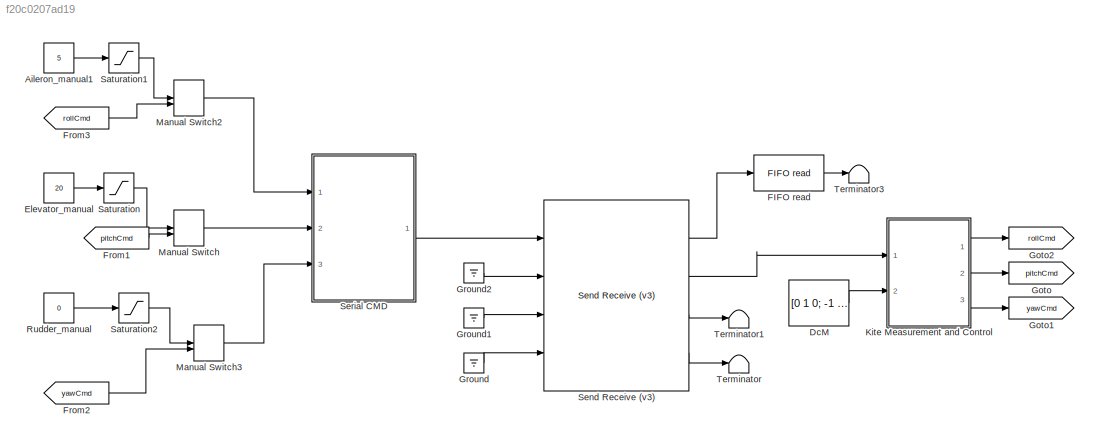
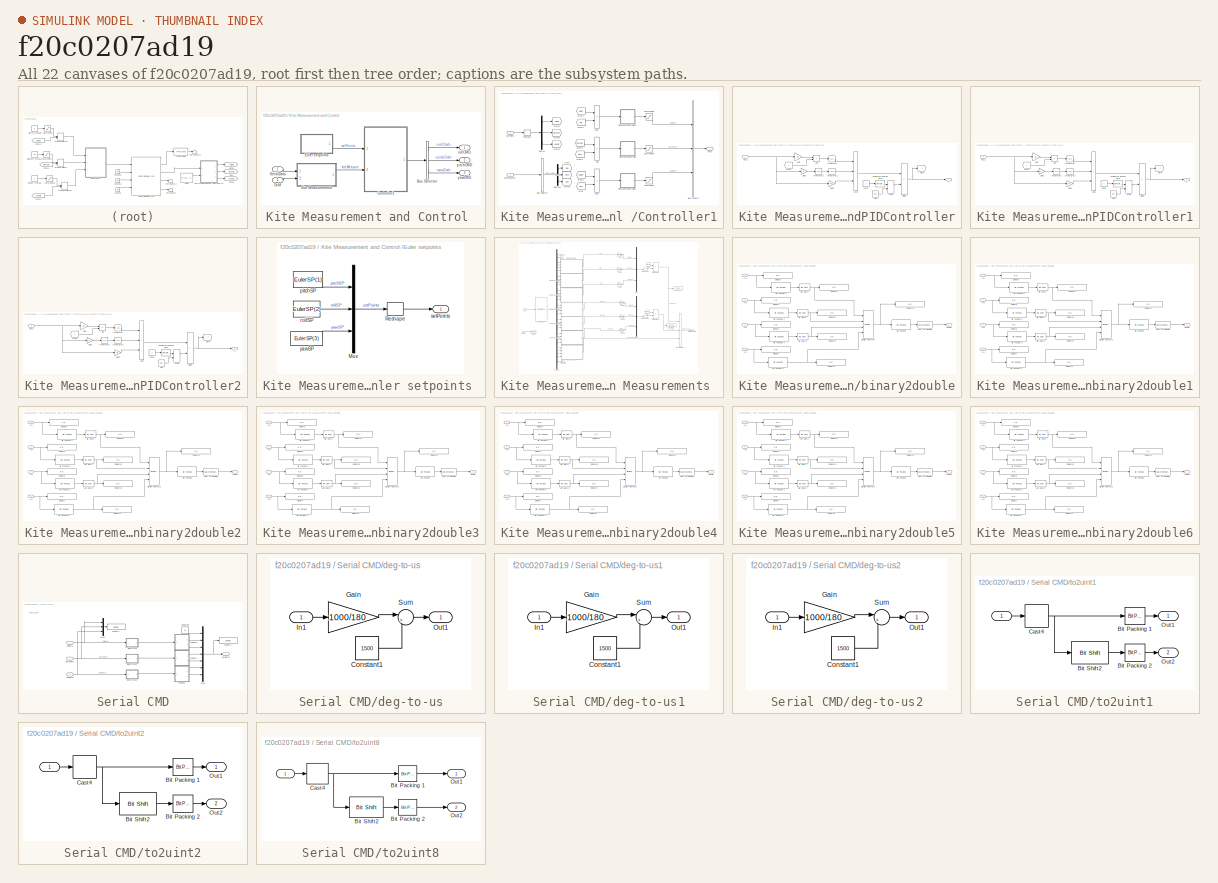
[diagram: thumbnail index - all 22 canvases of the model, root first then tree order]
MODEL slx_f20c0207ad19
KIND model
CONFIG AbsTol = auto
CONFIG EnableMultiTasking = on
CONFIG FixedStep = auto
CONFIG MaxStep = auto
CONFIG MinStep = auto
CONFIG RelTol = 1e-3
CONFIG SampleTimeConstraint = Unconstrained
CONFIG Solver = FixedStepAuto
CONFIG SolverName = FixedStepAuto
CONFIG StartTime = 0.0
CONFIG StopTime = inf
BLOCK [Constant] Aileron_manual1
  OutDataTypeStr = int8
  Value = 5
BLOCK [Constant] DcM
  Value = [0 1 0; -1 0 0;0 0 1]
BLOCK [Constant] Elevator_manual
  OutDataTypeStr = int8
  Value = 20
BLOCK [Reference] FIFO read   REF=xpcseriallib/FIFO read 
  Ports = [1, 1]
  SourceBlock = xpcseriallib/FIFO read
  SourceProductBaseCode = XP
  SourceType = Asynchronous FIFO Block: reader
BLOCK [From] From1
  GotoTag = pitchCmd
BLOCK [From] From2
  GotoTag = yawCmd
BLOCK [From] From3
  GotoTag = rollCmd
BLOCK [Goto] Goto
  GotoTag = pitchCmd
BLOCK [Goto] Goto1
  GotoTag = yawCmd
BLOCK [Goto] Goto2
  GotoTag = rollCmd
BLOCK [Ground] Ground
BLOCK [Ground] Ground1
BLOCK [Ground] Ground2
BLOCK [SubSystem] Kite Measurement and Control 
  Ports = [2, 3]
  RequestExecContextInheritance = off
BLOCK [BusSelector] Kite Measurement and Control /Bus Selector
  OutputSignals = rollCmd,pitchCmd,yawCmd
  Ports = [1, 3]
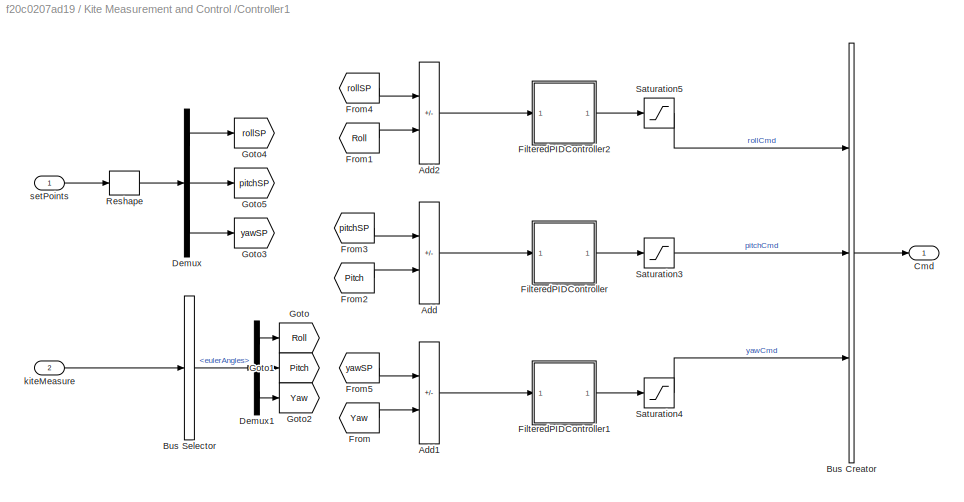
BLOCK [SubSystem] Kite Measurement and Control /Controller1
  Ports = [2, 1]
  RequestExecContextInheritance = off
BLOCK [Sum] Kite Measurement and Control /Controller1/Add
  IconShape = rectangular
  Inputs = +-
  Ports = [2, 1]
BLOCK [Sum] Kite Measurement and Control /Controller1/Add1
  IconShape = rectangular
  Inputs = +-
  Ports = [2, 1]
BLOCK [Sum] Kite Measurement and Control /Controller1/Add2
  IconShape = rectangular
  Inputs = +-
  Ports = [2, 1]
BLOCK [BusCreator] Kite Measurement and Control /Controller1/Bus Creator
  DisplayOption = bar
  InheritFromInputs = on
  Inputs = 3
  Ports = [3, 1]
BLOCK [BusSelector] Kite Measurement and Control /Controller1/Bus Selector
  OutputSignals = eulerAngles
  Ports = [1, 1]
BLOCK [Outport] Kite Measurement and Control /Controller1/Cmd
BLOCK [Demux] Kite Measurement and Control /Controller1/Demux
  Outputs = 3
  Ports = [1, 3]
BLOCK [Demux] Kite Measurement and Control /Controller1/Demux1
  Outputs = 3
  Ports = [1, 3]
BLOCK [SubSystem] Kite Measurement and Control /Controller1/FilteredPIDController
  Ports = [1, 1]
  RequestExecContextInheritance = off
BLOCK [Sum] Kite Measurement and Control /Controller1/FilteredPIDController/Add
  IconShape = rectangular
  Inputs = +-
  Ports = [2, 1]
BLOCK [Sum] Kite Measurement and Control /Controller1/FilteredPIDController/Add1
  IconShape = rectangular
  Inputs = +++
  Ports = [3, 1]
BLOCK [Product] Kite Measurement and Control /Controller1/FilteredPIDController/Divide
  Inputs = */
  Ports = [2, 1]
BLOCK [From] Kite Measurement and Control /Controller1/FilteredPIDController/From
  GotoTag = y
BLOCK [Gain] Kite Measurement and Control /Controller1/FilteredPIDController/Gain
  Gain = Kp
BLOCK [Gain] Kite Measurement and Control /Controller1/FilteredPIDController/Gain1
  Gain = Ki
BLOCK [Gain] Kite Measurement and Control /Controller1/FilteredPIDController/Gain2
  Gain = Kd
BLOCK [Goto] Kite Measurement and Control /Controller1/FilteredPIDController/Goto
  GotoTag = y
BLOCK [Integrator] Kite Measurement and Control /Controller1/FilteredPIDController/Integrator
  Ports = [1, 1]
BLOCK [Integrator] Kite Measurement and Control /Controller1/FilteredPIDController/Integrator1
  Ports = [1, 1]
BLOCK [Integrator] Kite Measurement and Control /Controller1/FilteredPIDController/Integrator2
  Ports = [1, 1]
BLOCK [MinMax] Kite Measurement and Control /Controller1/FilteredPIDController/Max
  Function = max
  Inputs = 2
  Ports = [2, 1]
BLOCK [Constant] Kite Measurement and Control /Controller1/FilteredPIDController/Tau
  Value = tau
BLOCK [SampleTimeMath] Kite Measurement and Control /Controller1/FilteredPIDController/Weighted Sample Time
  TsampMathOp = Ts Only
BLOCK [Constant] Kite Measurement and Control /Controller1/FilteredPIDController/const
BLOCK [Inport] Kite Measurement and Control /Controller1/FilteredPIDController/del_u
BLOCK [Outport] Kite Measurement and Control /Controller1/FilteredPIDController/y
BLOCK [SubSystem] Kite Measurement and Control /Controller1/FilteredPIDController1
  Ports = [1, 1]
  RequestExecContextInheritance = off
BLOCK [Sum] Kite Measurement and Control /Controller1/FilteredPIDController1/Add
  IconShape = rectangular
  Inputs = +-
  Ports = [2, 1]
BLOCK [Sum] Kite Measurement and Control /Controller1/FilteredPIDController1/Add1
  IconShape = rectangular
  Inputs = +++
  Ports = [3, 1]
BLOCK [Product] Kite Measurement and Control /Controller1/FilteredPIDController1/Divide
  Inputs = */
  Ports = [2, 1]
BLOCK [From] Kite Measurement and Control /Controller1/FilteredPIDController1/From
  GotoTag = y
BLOCK [Gain] Kite Measurement and Control /Controller1/FilteredPIDController1/Gain
  Gain = Kp
BLOCK [Gain] Kite Measurement and Control /Controller1/FilteredPIDController1/Gain1
  Gain = Ki
BLOCK [Gain] Kite Measurement and Control /Controller1/FilteredPIDController1/Gain2
  Gain = Kd
BLOCK [Goto] Kite Measurement and Control /Controller1/FilteredPIDController1/Goto
  GotoTag = y
BLOCK [Integrator] Kite Measurement and Control /Controller1/FilteredPIDController1/Integrator
  Ports = [1, 1]
BLOCK [Integrator] Kite Measurement and Control /Controller1/FilteredPIDController1/Integrator1
  Ports = [1, 1]
BLOCK [Integrator] Kite Measurement and Control /Controller1/FilteredPIDController1/Integrator2
  Ports = [1, 1]
BLOCK [MinMax] Kite Measurement and Control /Controller1/FilteredPIDController1/Max
  Function = max
  Inputs = 2
  Ports = [2, 1]
BLOCK [Constant] Kite Measurement and Control /Controller1/FilteredPIDController1/Tau
  Value = tau
BLOCK [SampleTimeMath] Kite Measurement and Control /Controller1/FilteredPIDController1/Weighted Sample Time
  TsampMathOp = Ts Only
BLOCK [Constant] Kite Measurement and Control /Controller1/FilteredPIDController1/const
BLOCK [Inport] Kite Measurement and Control /Controller1/FilteredPIDController1/del_u
BLOCK [Outport] Kite Measurement and Control /Controller1/FilteredPIDController1/y
BLOCK [SubSystem] Kite Measurement and Control /Controller1/FilteredPIDController2
  Ports = [1, 1]
  RequestExecContextInheritance = off
BLOCK [Sum] Kite Measurement and Control /Controller1/FilteredPIDController2/Add
  IconShape = rectangular
  Inputs = +-
  Ports = [2, 1]
BLOCK [Sum] Kite Measurement and Control /Controller1/FilteredPIDController2/Add1
  IconShape = rectangular
  Inputs = +++
  Ports = [3, 1]
BLOCK [Product] Kite Measurement and Control /Controller1/FilteredPIDController2/Divide
  Inputs = */
  Ports = [2, 1]
BLOCK [From] Kite Measurement and Control /Controller1/FilteredPIDController2/From
  GotoTag = y
BLOCK [Gain] Kite Measurement and Control /Controller1/FilteredPIDController2/Gain
  Gain = Kp
BLOCK [Gain] Kite Measurement and Control /Controller1/FilteredPIDController2/Gain1
  Gain = Ki
BLOCK [Gain] Kite Measurement and Control /Controller1/FilteredPIDController2/Gain2
  Gain = Kd
BLOCK [Goto] Kite Measurement and Control /Controller1/FilteredPIDController2/Goto
  GotoTag = y
BLOCK [Integrator] Kite Measurement and Control /Controller1/FilteredPIDController2/Integrator
  Ports = [1, 1]
BLOCK [Integrator] Kite Measurement and Control /Controller1/FilteredPIDController2/Integrator1
  Ports = [1, 1]
BLOCK [Integrator] Kite Measurement and Control /Controller1/FilteredPIDController2/Integrator2
  Ports = [1, 1]
BLOCK [MinMax] Kite Measurement and Control /Controller1/FilteredPIDController2/Max
  Function = max
  Inputs = 2
  Ports = [2, 1]
BLOCK [Constant] Kite Measurement and Control /Controller1/FilteredPIDController2/Tau
  Value = tau
BLOCK [SampleTimeMath] Kite Measurement and Control /Controller1/FilteredPIDController2/Weighted Sample Time
  TsampMathOp = Ts Only
BLOCK [Constant] Kite Measurement and Control /Controller1/FilteredPIDController2/const
BLOCK [Inport] Kite Measurement and Control /Controller1/FilteredPIDController2/del_u
BLOCK [Outport] Kite Measurement and Control /Controller1/FilteredPIDController2/y
BLOCK [From] Kite Measurement and Control /Controller1/From
  GotoTag = Yaw
BLOCK [From] Kite Measurement and Control /Controller1/From1
  GotoTag = Roll
BLOCK [From] Kite Measurement and Control /Controller1/From2
  GotoTag = Pitch
BLOCK [From] Kite Measurement and Control /Controller1/From3
  GotoTag = pitchSP
BLOCK [From] Kite Measurement and Control /Controller1/From4
  GotoTag = rollSP
BLOCK [From] Kite Measurement and Control /Controller1/From5
  GotoTag = yawSP
BLOCK [Goto] Kite Measurement and Control /Controller1/Goto
  GotoTag = Roll
BLOCK [Goto] Kite Measurement and Control /Controller1/Goto1
  GotoTag = Pitch
BLOCK [Goto] Kite Measurement and Control /Controller1/Goto2
  GotoTag = Yaw
BLOCK [Goto] Kite Measurement and Control /Controller1/Goto3
  GotoTag = yawSP
BLOCK [Goto] Kite Measurement and Control /Controller1/Goto4
  GotoTag = rollSP
BLOCK [Goto] Kite Measurement and Control /Controller1/Goto5
  GotoTag = pitchSP
BLOCK [Reshape] Kite Measurement and Control /Controller1/Reshape
  OutputDimensionality = Column vector (2-D)
  Ports = [1, 1]
BLOCK [Saturate] Kite Measurement and Control /Controller1/Saturation3
  LowerLimit = -30
  UpperLimit = 30
BLOCK [Saturate] Kite Measurement and Control /Controller1/Saturation4
  LowerLimit = -30
  UpperLimit = 30
BLOCK [Saturate] Kite Measurement and Control /Controller1/Saturation5
  LowerLimit = -30
  UpperLimit = 30
BLOCK [Inport] Kite Measurement and Control /Controller1/kiteMeasure
  Port = 2
BLOCK [Inport] Kite Measurement and Control /Controller1/setPoints
BLOCK [Inport] Kite Measurement and Control /DcM
  Port = 2
BLOCK [SubSystem] Kite Measurement and Control /Euler setpoints 
  Ports = [0, 1]
  RequestExecContextInheritance = off
BLOCK [Mux] Kite Measurement and Control /Euler setpoints /Mux
  DisplayOption = bar
  Inputs = 3
  Ports = [3, 1]
BLOCK [Reshape] Kite Measurement and Control /Euler setpoints /Reshape
  OutputDimensionality = Column vector (2-D)
  Ports = [1, 1]
BLOCK [Constant] Kite Measurement and Control /Euler setpoints /pitchSP
  Value = EulerSP(1)
BLOCK [Constant] Kite Measurement and Control /Euler setpoints /rollSP
  Value = EulerSP(2)
BLOCK [Outport] Kite Measurement and Control /Euler setpoints /setPoints
  NameLocation = top
BLOCK [Constant] Kite Measurement and Control /Euler setpoints /yawSP
  Value = EulerSP(3)
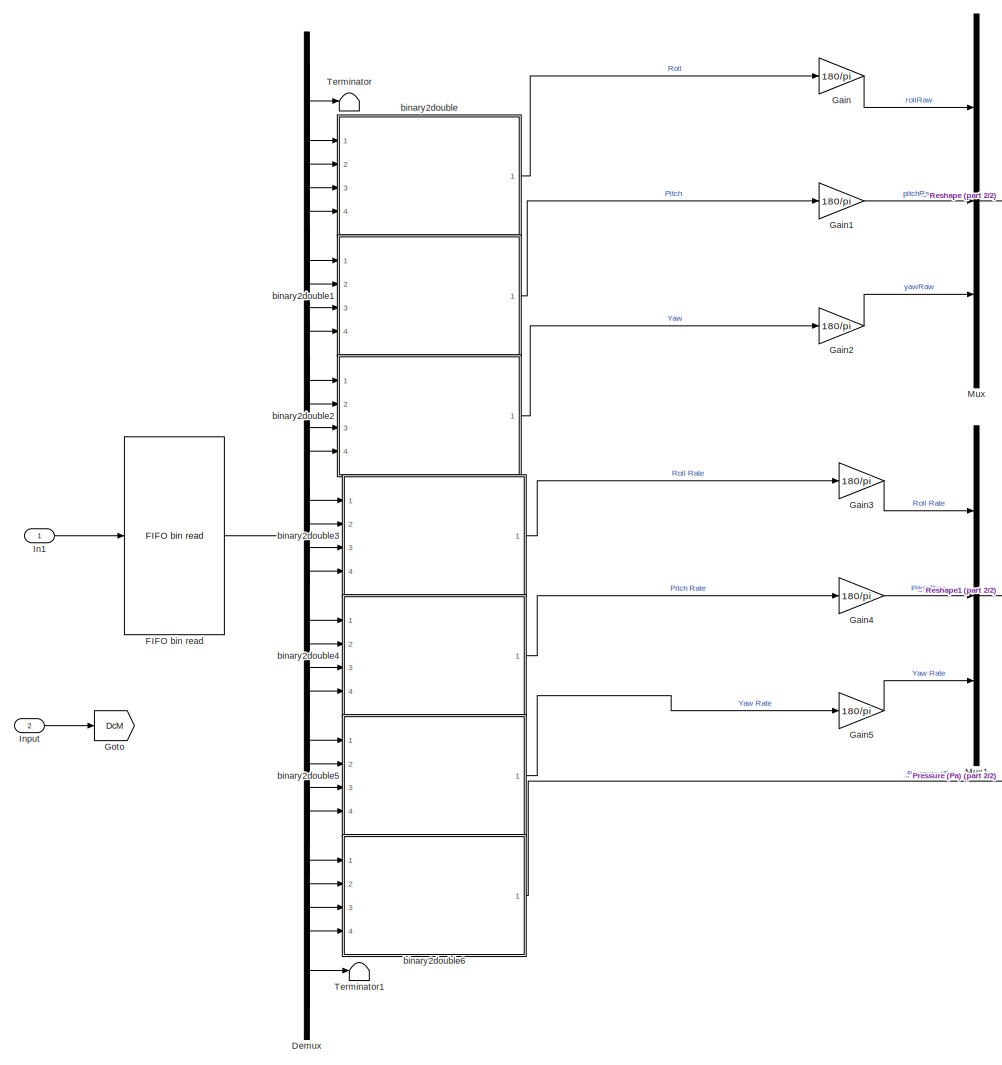
[diagram: Kite Measurement and Control /Kite Measurements  - part 1/2, center side, full height]
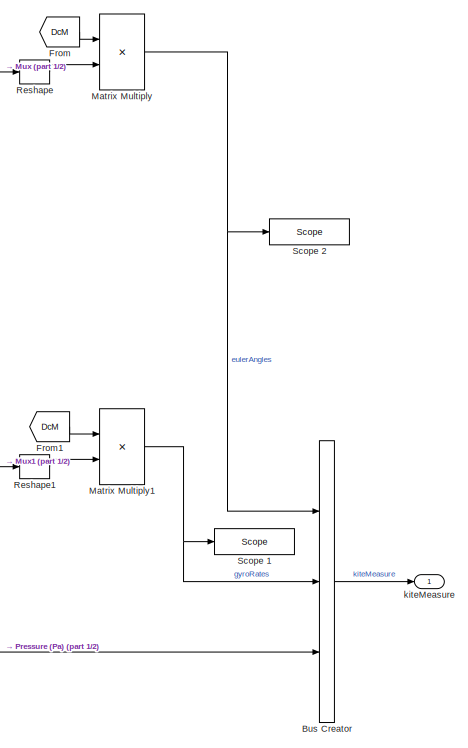
[diagram: Kite Measurement and Control /Kite Measurements  - part 2/2, middle right region]
BLOCK [SubSystem] Kite Measurement and Control /Kite Measurements 
  Ports = [2, 1]
  RequestExecContextInheritance = off
BLOCK [BusCreator] Kite Measurement and Control /Kite Measurements /Bus Creator
  DisplayOption = bar
  InheritFromInputs = on
  Inputs = 3
  Ports = [3, 1]
BLOCK [Demux] Kite Measurement and Control /Kite Measurements /Demux
  Outputs = 30
  Ports = [1, 30]
BLOCK [Reference] Kite Measurement and Control /Kite Measurements /FIFO bin read   REF=xpcseriallib/FIFO bin read 
  Ports = [1, 1]
  SourceBlock = xpcseriallib/FIFO bin read
  SourceProductBaseCode = XP
  SourceType = Asynchronous FIFO Block: reader
BLOCK [From] Kite Measurement and Control /Kite Measurements /From
  GotoTag = DcM
BLOCK [From] Kite Measurement and Control /Kite Measurements /From1
  GotoTag = DcM
BLOCK [Gain] Kite Measurement and Control /Kite Measurements /Gain
  Gain = 180/pi
BLOCK [Gain] Kite Measurement and Control /Kite Measurements /Gain1
  Gain = 180/pi
BLOCK [Gain] Kite Measurement and Control /Kite Measurements /Gain2
  Gain = 180/pi
BLOCK [Gain] Kite Measurement and Control /Kite Measurements /Gain3
  Gain = 180/pi
BLOCK [Gain] Kite Measurement and Control /Kite Measurements /Gain4
  Gain = 180/pi
BLOCK [Gain] Kite Measurement and Control /Kite Measurements /Gain5
  Gain = 180/pi
BLOCK [Goto] Kite Measurement and Control /Kite Measurements /Goto
  GotoTag = DcM
BLOCK [Inport] Kite Measurement and Control /Kite Measurements /In1
BLOCK [Inport] Kite Measurement and Control /Kite Measurements /Input
  Port = 2
BLOCK [Product] Kite Measurement and Control /Kite Measurements /Matrix Multiply
  Multiplication = Matrix(*)
  Ports = [2, 1]
BLOCK [Product] Kite Measurement and Control /Kite Measurements /Matrix Multiply1
  Multiplication = Matrix(*)
  Ports = [2, 1]
BLOCK [Mux] Kite Measurement and Control /Kite Measurements /Mux
  DisplayOption = bar
  Inputs = 3
  Ports = [3, 1]
BLOCK [Mux] Kite Measurement and Control /Kite Measurements /Mux1
  DisplayOption = bar
  Inputs = 3
  Ports = [3, 1]
BLOCK [Reshape] Kite Measurement and Control /Kite Measurements /Reshape
  OutputDimensionality = Column vector (2-D)
  Ports = [1, 1]
BLOCK [Reshape] Kite Measurement and Control /Kite Measurements /Reshape1
  OutputDimensionality = Column vector (2-D)
  Ports = [1, 1]
BLOCK [Reference] Kite Measurement and Control /Kite Measurements /Scope 1  REF=slrtlib/Displays and
Logging/Scope 
  Ports = [1]
  SourceBlock = slrtlib/Displays and\nLogging/Scope
  SourceProductBaseCode = XP
  SourceType = xpcscopeblock
BLOCK [Reference] Kite Measurement and Control /Kite Measurements /Scope 2  REF=slrtlib/Displays and
Logging/Scope 
  Ports = [1]
  SourceBlock = slrtlib/Displays and\nLogging/Scope
  SourceProductBaseCode = XP
  SourceType = xpcscopeblock
BLOCK [Terminator] Kite Measurement and Control /Kite Measurements /Terminator
BLOCK [Terminator] Kite Measurement and Control /Kite Measurements /Terminator1
BLOCK [SubSystem] Kite Measurement and Control /Kite Measurements /binary2double
  Ports = [4, 1]
  RequestExecContextInheritance = off
BLOCK [Reference] Kite Measurement and Control /Kite Measurements /binary2double/Bit Packing   REF=xpcutilitieslib/Bit Packing 
  Ports = [1, 1]
  SourceBlock = xpcutilitieslib/Bit Packing
  SourceProductBaseCode = XP
  SourceType = xpcbitpacking
BLOCK [Reference] Kite Measurement and Control /Kite Measurements /binary2double/Bit Packing 1  REF=xpcutilitieslib/Bit Packing 
  Ports = [1, 1]
  SourceBlock = xpcutilitieslib/Bit Packing
  SourceProductBaseCode = XP
  SourceType = xpcbitpacking
BLOCK [Reference] Kite Measurement and Control /Kite Measurements /binary2double/Bit Packing 2  REF=xpcutilitieslib/Bit Packing 
  Ports = [1, 1]
  SourceBlock = xpcutilitieslib/Bit Packing
  SourceProductBaseCode = XP
  SourceType = xpcbitpacking
BLOCK [Reference] Kite Measurement and Control /Kite Measurements /binary2double/Bit Packing 3  REF=xpcutilitieslib/Bit Packing 
  Ports = [1, 1]
  SourceBlock = xpcutilitieslib/Bit Packing
  SourceProductBaseCode = XP
  SourceType = xpcbitpacking
BLOCK [Reference] Kite Measurement and Control /Kite Measurements /binary2double/Bit Packing 4  REF=xpcutilitieslib/Bit Packing 
  Ports = [1, 1]
  SourceBlock = xpcutilitieslib/Bit Packing
  SourceProductBaseCode = XP
  SourceType = xpcbitpacking
BLOCK [Reference] Kite Measurement and Control /Kite Measurements /binary2double/Bit Shift1  REF=hdlsllib/Logic and Bit
Operations/Bit Shift
  Ports = [1, 1]
  SourceBlock = hdlsllib/Logic and Bit\nOperations/Bit Shift
  SourceProductBaseCode = SL
  SourceType = Bit Shift
BLOCK [Reference] Kite Measurement and Control /Kite Measurements /binary2double/Bit Shift2  REF=hdlsllib/Logic and Bit
Operations/Bit Shift
  Ports = [1, 1]
  SourceBlock = hdlsllib/Logic and Bit\nOperations/Bit Shift
  SourceProductBaseCode = SL
  SourceType = Bit Shift
BLOCK [Reference] Kite Measurement and Control /Kite Measurements /binary2double/Bit Shift3  REF=hdlsllib/Logic and Bit
Operations/Bit Shift
  Ports = [1, 1]
  SourceBlock = hdlsllib/Logic and Bit\nOperations/Bit Shift
  SourceProductBaseCode = SL
  SourceType = Bit Shift
BLOCK [Reference] Kite Measurement and Control /Kite Measurements /binary2double/Bitwise Operator  REF=simulink/Logic and Bit
Operations/Bitwise
Operator
  Ports = [4, 1]
  SourceBlock = simulink/Logic and Bit\nOperations/Bitwise\nOperator
  SourceProductBaseCode = SL
  SourceType = Bitwise Operator
BLOCK [DataTypeConversion] Kite Measurement and Control /Kite Measurements /binary2double/Cast To Double1
  OutDataTypeStr = double
  RndMeth = Floor
  SaturateOnIntegerOverflow = off
BLOCK [Display] Kite Measurement and Control /Kite Measurements /binary2double/Display10
  Decimation = 1
  Format = hex (Stored Integer)
  Ports = [1]
BLOCK [Display] Kite Measurement and Control /Kite Measurements /binary2double/Display11
  Decimation = 1
  Format = hex (Stored Integer)
  Ports = [1]
BLOCK [Display] Kite Measurement and Control /Kite Measurements /binary2double/Display12
  Decimation = 1
  Format = hex (Stored Integer)
  Ports = [1]
BLOCK [Display] Kite Measurement and Control /Kite Measurements /binary2double/Display13
  Decimation = 1
  Format = hex (Stored Integer)
  Ports = [1]
BLOCK [Display] Kite Measurement and Control /Kite Measurements /binary2double/Display14
  Decimation = 1
  Format = hex (Stored Integer)
  Ports = [1]
BLOCK [Display] Kite Measurement and Control /Kite Measurements /binary2double/Display3
  Decimation = 1
  Format = hex (Stored Integer)
  Ports = [1]
BLOCK [Display] Kite Measurement and Control /Kite Measurements /binary2double/Display5
  Decimation = 1
  Format = hex (Stored Integer)
  Ports = [1]
BLOCK [Display] Kite Measurement and Control /Kite Measurements /binary2double/Display6
  Decimation = 1
  Format = hex (Stored Integer)
  Ports = [1]
BLOCK [Display] Kite Measurement and Control /Kite Measurements /binary2double/Display7
  Decimation = 1
  Format = hex (Stored Integer)
  Ports = [1]
BLOCK [Outport] Kite Measurement and Control /Kite Measurements /binary2double/Double
BLOCK [Inport] Kite Measurement and Control /Kite Measurements /binary2double/In1
BLOCK [Inport] Kite Measurement and Control /Kite Measurements /binary2double/In2
  Port = 2
BLOCK [Inport] Kite Measurement and Control /Kite Measurements /binary2double/In3
  Port = 3
BLOCK [Inport] Kite Measurement and Control /Kite Measurements /binary2double/In4
  Port = 4
BLOCK [SubSystem] Kite Measurement and Control /Kite Measurements /binary2double1
  Ports = [4, 1]
  RequestExecContextInheritance = off
BLOCK [Reference] Kite Measurement and Control /Kite Measurements /binary2double1/Bit Packing   REF=xpcutilitieslib/Bit Packing 
  Ports = [1, 1]
  SourceBlock = xpcutilitieslib/Bit Packing
  SourceProductBaseCode = XP
  SourceType = xpcbitpacking
BLOCK [Reference] Kite Measurement and Control /Kite Measurements /binary2double1/Bit Packing 1  REF=xpcutilitieslib/Bit Packing 
  Ports = [1, 1]
  SourceBlock = xpcutilitieslib/Bit Packing
  SourceProductBaseCode = XP
  SourceType = xpcbitpacking
BLOCK [Reference] Kite Measurement and Control /Kite Measurements /binary2double1/Bit Packing 2  REF=xpcutilitieslib/Bit Packing 
  Ports = [1, 1]
  SourceBlock = xpcutilitieslib/Bit Packing
  SourceProductBaseCode = XP
  SourceType = xpcbitpacking
BLOCK [Reference] Kite Measurement and Control /Kite Measurements /binary2double1/Bit Packing 3  REF=xpcutilitieslib/Bit Packing 
  Ports = [1, 1]
  SourceBlock = xpcutilitieslib/Bit Packing
  SourceProductBaseCode = XP
  SourceType = xpcbitpacking
BLOCK [Reference] Kite Measurement and Control /Kite Measurements /binary2double1/Bit Packing 4  REF=xpcutilitieslib/Bit Packing 
  Ports = [1, 1]
  SourceBlock = xpcutilitieslib/Bit Packing
  SourceProductBaseCode = XP
  SourceType = xpcbitpacking
BLOCK [Reference] Kite Measurement and Control /Kite Measurements /binary2double1/Bit Shift1  REF=hdlsllib/Logic and Bit
Operations/Bit Shift
  Ports = [1, 1]
  SourceBlock = hdlsllib/Logic and Bit\nOperations/Bit Shift
  SourceProductBaseCode = SL
  SourceType = Bit Shift
BLOCK [Reference] Kite Measurement and Control /Kite Measurements /binary2double1/Bit Shift2  REF=hdlsllib/Logic and Bit
Operations/Bit Shift
  Ports = [1, 1]
  SourceBlock = hdlsllib/Logic and Bit\nOperations/Bit Shift
  SourceProductBaseCode = SL
  SourceType = Bit Shift
BLOCK [Reference] Kite Measurement and Control /Kite Measurements /binary2double1/Bit Shift3  REF=hdlsllib/Logic and Bit
Operations/Bit Shift
  Ports = [1, 1]
  SourceBlock = hdlsllib/Logic and Bit\nOperations/Bit Shift
  SourceProductBaseCode = SL
  SourceType = Bit Shift
BLOCK [Reference] Kite Measurement and Control /Kite Measurements /binary2double1/Bitwise Operator  REF=simulink/Logic and Bit
Operations/Bitwise
Operator
  Ports = [4, 1]
  SourceBlock = simulink/Logic and Bit\nOperations/Bitwise\nOperator
  SourceProductBaseCode = SL
  SourceType = Bitwise Operator
BLOCK [DataTypeConversion] Kite Measurement and Control /Kite Measurements /binary2double1/Cast To Double1
  OutDataTypeStr = double
  RndMeth = Floor
  SaturateOnIntegerOverflow = off
BLOCK [Display] Kite Measurement and Control /Kite Measurements /binary2double1/Display10
  Decimation = 1
  Format = hex (Stored Integer)
  Ports = [1]
BLOCK [Display] Kite Measurement and Control /Kite Measurements /binary2double1/Display11
  Decimation = 1
  Format = hex (Stored Integer)
  Ports = [1]
BLOCK [Display] Kite Measurement and Control /Kite Measurements /binary2double1/Display12
  Decimation = 1
  Format = hex (Stored Integer)
  Ports = [1]
BLOCK [Display] Kite Measurement and Control /Kite Measurements /binary2double1/Display13
  Decimation = 1
  Format = hex (Stored Integer)
  Ports = [1]
BLOCK [Display] Kite Measurement and Control /Kite Measurements /binary2double1/Display14
  Decimation = 1
  Format = hex (Stored Integer)
  Ports = [1]
BLOCK [Display] Kite Measurement and Control /Kite Measurements /binary2double1/Display3
  Decimation = 1
  Format = hex (Stored Integer)
  Ports = [1]
BLOCK [Display] Kite Measurement and Control /Kite Measurements /binary2double1/Display5
  Decimation = 1
  Format = hex (Stored Integer)
  Ports = [1]
BLOCK [Display] Kite Measurement and Control /Kite Measurements /binary2double1/Display6
  Decimation = 1
  Format = hex (Stored Integer)
  Ports = [1]
BLOCK [Display] Kite Measurement and Control /Kite Measurements /binary2double1/Display7
  Decimation = 1
  Format = hex (Stored Integer)
  Ports = [1]
BLOCK [Outport] Kite Measurement and Control /Kite Measurements /binary2double1/Double
BLOCK [Inport] Kite Measurement and Control /Kite Measurements /binary2double1/In1
BLOCK [Inport] Kite Measurement and Control /Kite Measurements /binary2double1/In2
  Port = 2
BLOCK [Inport] Kite Measurement and Control /Kite Measurements /binary2double1/In3
  Port = 3
BLOCK [Inport] Kite Measurement and Control /Kite Measurements /binary2double1/In4
  Port = 4
BLOCK [SubSystem] Kite Measurement and Control /Kite Measurements /binary2double2
  Ports = [4, 1]
  RequestExecContextInheritance = off
BLOCK [Reference] Kite Measurement and Control /Kite Measurements /binary2double2/Bit Packing   REF=xpcutilitieslib/Bit Packing 
  Ports = [1, 1]
  SourceBlock = xpcutilitieslib/Bit Packing
  SourceProductBaseCode = XP
  SourceType = xpcbitpacking
BLOCK [Reference] Kite Measurement and Control /Kite Measurements /binary2double2/Bit Packing 1  REF=xpcutilitieslib/Bit Packing 
  Ports = [1, 1]
  SourceBlock = xpcutilitieslib/Bit Packing
  SourceProductBaseCode = XP
  SourceType = xpcbitpacking
BLOCK [Reference] Kite Measurement and Control /Kite Measurements /binary2double2/Bit Packing 2  REF=xpcutilitieslib/Bit Packing 
  Ports = [1, 1]
  SourceBlock = xpcutilitieslib/Bit Packing
  SourceProductBaseCode = XP
  SourceType = xpcbitpacking
BLOCK [Reference] Kite Measurement and Control /Kite Measurements /binary2double2/Bit Packing 3  REF=xpcutilitieslib/Bit Packing 
  Ports = [1, 1]
  SourceBlock = xpcutilitieslib/Bit Packing
  SourceProductBaseCode = XP
  SourceType = xpcbitpacking
BLOCK [Reference] Kite Measurement and Control /Kite Measurements /binary2double2/Bit Packing 4  REF=xpcutilitieslib/Bit Packing 
  Ports = [1, 1]
  SourceBlock = xpcutilitieslib/Bit Packing
  SourceProductBaseCode = XP
  SourceType = xpcbitpacking
BLOCK [Reference] Kite Measurement and Control /Kite Measurements /binary2double2/Bit Shift1  REF=hdlsllib/Logic and Bit
Operations/Bit Shift
  Ports = [1, 1]
  SourceBlock = hdlsllib/Logic and Bit\nOperations/Bit Shift
  SourceProductBaseCode = SL
  SourceType = Bit Shift
BLOCK [Reference] Kite Measurement and Control /Kite Measurements /binary2double2/Bit Shift2  REF=hdlsllib/Logic and Bit
Operations/Bit Shift
  Ports = [1, 1]
  SourceBlock = hdlsllib/Logic and Bit\nOperations/Bit Shift
  SourceProductBaseCode = SL
  SourceType = Bit Shift
BLOCK [Reference] Kite Measurement and Control /Kite Measurements /binary2double2/Bit Shift3  REF=hdlsllib/Logic and Bit
Operations/Bit Shift
  Ports = [1, 1]
  SourceBlock = hdlsllib/Logic and Bit\nOperations/Bit Shift
  SourceProductBaseCode = SL
  SourceType = Bit Shift
BLOCK [Reference] Kite Measurement and Control /Kite Measurements /binary2double2/Bitwise Operator  REF=simulink/Logic and Bit
Operations/Bitwise
Operator
  Ports = [4, 1]
  SourceBlock = simulink/Logic and Bit\nOperations/Bitwise\nOperator
  SourceProductBaseCode = SL
  SourceType = Bitwise Operator
BLOCK [DataTypeConversion] Kite Measurement and Control /Kite Measurements /binary2double2/Cast To Double1
  OutDataTypeStr = double
  RndMeth = Floor
  SaturateOnIntegerOverflow = off
BLOCK [Display] Kite Measurement and Control /Kite Measurements /binary2double2/Display10
  Decimation = 1
  Format = hex (Stored Integer)
  Ports = [1]
BLOCK [Display] Kite Measurement and Control /Kite Measurements /binary2double2/Display11
  Decimation = 1
  Format = hex (Stored Integer)
  Ports = [1]
BLOCK [Display] Kite Measurement and Control /Kite Measurements /binary2double2/Display12
  Decimation = 1
  Format = hex (Stored Integer)
  Ports = [1]
BLOCK [Display] Kite Measurement and Control /Kite Measurements /binary2double2/Display13
  Decimation = 1
  Format = hex (Stored Integer)
  Ports = [1]
BLOCK [Display] Kite Measurement and Control /Kite Measurements /binary2double2/Display14
  Decimation = 1
  Format = hex (Stored Integer)
  Ports = [1]
BLOCK [Display] Kite Measurement and Control /Kite Measurements /binary2double2/Display3
  Decimation = 1
  Format = hex (Stored Integer)
  Ports = [1]
BLOCK [Display] Kite Measurement and Control /Kite Measurements /binary2double2/Display5
  Decimation = 1
  Format = hex (Stored Integer)
  Ports = [1]
BLOCK [Display] Kite Measurement and Control /Kite Measurements /binary2double2/Display6
  Decimation = 1
  Format = hex (Stored Integer)
  Ports = [1]
BLOCK [Display] Kite Measurement and Control /Kite Measurements /binary2double2/Display7
  Decimation = 1
  Format = hex (Stored Integer)
  Ports = [1]
BLOCK [Outport] Kite Measurement and Control /Kite Measurements /binary2double2/Double
BLOCK [Inport] Kite Measurement and Control /Kite Measurements /binary2double2/In1
BLOCK [Inport] Kite Measurement and Control /Kite Measurements /binary2double2/In2
  Port = 2
BLOCK [Inport] Kite Measurement and Control /Kite Measurements /binary2double2/In3
  Port = 3
BLOCK [Inport] Kite Measurement and Control /Kite Measurements /binary2double2/In4
  Port = 4
BLOCK [SubSystem] Kite Measurement and Control /Kite Measurements /binary2double3
  Ports = [4, 1]
  RequestExecContextInheritance = off
BLOCK [Reference] Kite Measurement and Control /Kite Measurements /binary2double3/Bit Packing   REF=xpcutilitieslib/Bit Packing 
  Ports = [1, 1]
  SourceBlock = xpcutilitieslib/Bit Packing
  SourceProductBaseCode = XP
  SourceType = xpcbitpacking
BLOCK [Reference] Kite Measurement and Control /Kite Measurements /binary2double3/Bit Packing 1  REF=xpcutilitieslib/Bit Packing 
  Ports = [1, 1]
  SourceBlock = xpcutilitieslib/Bit Packing
  SourceProductBaseCode = XP
  SourceType = xpcbitpacking
BLOCK [Reference] Kite Measurement and Control /Kite Measurements /binary2double3/Bit Packing 2  REF=xpcutilitieslib/Bit Packing 
  Ports = [1, 1]
  SourceBlock = xpcutilitieslib/Bit Packing
  SourceProductBaseCode = XP
  SourceType = xpcbitpacking
BLOCK [Reference] Kite Measurement and Control /Kite Measurements /binary2double3/Bit Packing 3  REF=xpcutilitieslib/Bit Packing 
  Ports = [1, 1]
  SourceBlock = xpcutilitieslib/Bit Packing
  SourceProductBaseCode = XP
  SourceType = xpcbitpacking
BLOCK [Reference] Kite Measurement and Control /Kite Measurements /binary2double3/Bit Packing 4  REF=xpcutilitieslib/Bit Packing 
  Ports = [1, 1]
  SourceBlock = xpcutilitieslib/Bit Packing
  SourceProductBaseCode = XP
  SourceType = xpcbitpacking
BLOCK [Reference] Kite Measurement and Control /Kite Measurements /binary2double3/Bit Shift1  REF=hdlsllib/Logic and Bit
Operations/Bit Shift
  Ports = [1, 1]
  SourceBlock = hdlsllib/Logic and Bit\nOperations/Bit Shift
  SourceProductBaseCode = SL
  SourceType = Bit Shift
BLOCK [Reference] Kite Measurement and Control /Kite Measurements /binary2double3/Bit Shift2  REF=hdlsllib/Logic and Bit
Operations/Bit Shift
  Ports = [1, 1]
  SourceBlock = hdlsllib/Logic and Bit\nOperations/Bit Shift
  SourceProductBaseCode = SL
  SourceType = Bit Shift
BLOCK [Reference] Kite Measurement and Control /Kite Measurements /binary2double3/Bit Shift3  REF=hdlsllib/Logic and Bit
Operations/Bit Shift
  Ports = [1, 1]
  SourceBlock = hdlsllib/Logic and Bit\nOperations/Bit Shift
  SourceProductBaseCode = SL
  SourceType = Bit Shift
BLOCK [Reference] Kite Measurement and Control /Kite Measurements /binary2double3/Bitwise Operator  REF=simulink/Logic and Bit
Operations/Bitwise
Operator
  Ports = [4, 1]
  SourceBlock = simulink/Logic and Bit\nOperations/Bitwise\nOperator
  SourceProductBaseCode = SL
  SourceType = Bitwise Operator
BLOCK [DataTypeConversion] Kite Measurement and Control /Kite Measurements /binary2double3/Cast To Double1
  OutDataTypeStr = double
  RndMeth = Floor
  SaturateOnIntegerOverflow = off
BLOCK [Display] Kite Measurement and Control /Kite Measurements /binary2double3/Display10
  Decimation = 1
  Format = hex (Stored Integer)
  Ports = [1]
BLOCK [Display] Kite Measurement and Control /Kite Measurements /binary2double3/Display11
  Decimation = 1
  Format = hex (Stored Integer)
  Ports = [1]
BLOCK [Display] Kite Measurement and Control /Kite Measurements /binary2double3/Display12
  Decimation = 1
  Format = hex (Stored Integer)
  Ports = [1]
BLOCK [Display] Kite Measurement and Control /Kite Measurements /binary2double3/Display13
  Decimation = 1
  Format = hex (Stored Integer)
  Ports = [1]
BLOCK [Display] Kite Measurement and Control /Kite Measurements /binary2double3/Display14
  Decimation = 1
  Format = hex (Stored Integer)
  Ports = [1]
BLOCK [Display] Kite Measurement and Control /Kite Measurements /binary2double3/Display3
  Decimation = 1
  Format = hex (Stored Integer)
  Ports = [1]
BLOCK [Display] Kite Measurement and Control /Kite Measurements /binary2double3/Display5
  Decimation = 1
  Format = hex (Stored Integer)
  Ports = [1]
BLOCK [Display] Kite Measurement and Control /Kite Measurements /binary2double3/Display6
  Decimation = 1
  Format = hex (Stored Integer)
  Ports = [1]
BLOCK [Display] Kite Measurement and Control /Kite Measurements /binary2double3/Display7
  Decimation = 1
  Format = hex (Stored Integer)
  Ports = [1]
BLOCK [Outport] Kite Measurement and Control /Kite Measurements /binary2double3/Double
BLOCK [Inport] Kite Measurement and Control /Kite Measurements /binary2double3/In1
BLOCK [Inport] Kite Measurement and Control /Kite Measurements /binary2double3/In2
  Port = 2
BLOCK [Inport] Kite Measurement and Control /Kite Measurements /binary2double3/In3
  Port = 3
BLOCK [Inport] Kite Measurement and Control /Kite Measurements /binary2double3/In4
  Port = 4
BLOCK [SubSystem] Kite Measurement and Control /Kite Measurements /binary2double4
  Ports = [4, 1]
  RequestExecContextInheritance = off
BLOCK [Reference] Kite Measurement and Control /Kite Measurements /binary2double4/Bit Packing   REF=xpcutilitieslib/Bit Packing 
  Ports = [1, 1]
  SourceBlock = xpcutilitieslib/Bit Packing
  SourceProductBaseCode = XP
  SourceType = xpcbitpacking
BLOCK [Reference] Kite Measurement and Control /Kite Measurements /binary2double4/Bit Packing 1  REF=xpcutilitieslib/Bit Packing 
  Ports = [1, 1]
  SourceBlock = xpcutilitieslib/Bit Packing
  SourceProductBaseCode = XP
  SourceType = xpcbitpacking
BLOCK [Reference] Kite Measurement and Control /Kite Measurements /binary2double4/Bit Packing 2  REF=xpcutilitieslib/Bit Packing 
  Ports = [1, 1]
  SourceBlock = xpcutilitieslib/Bit Packing
  SourceProductBaseCode = XP
  SourceType = xpcbitpacking
BLOCK [Reference] Kite Measurement and Control /Kite Measurements /binary2double4/Bit Packing 3  REF=xpcutilitieslib/Bit Packing 
  Ports = [1, 1]
  SourceBlock = xpcutilitieslib/Bit Packing
  SourceProductBaseCode = XP
  SourceType = xpcbitpacking
BLOCK [Reference] Kite Measurement and Control /Kite Measurements /binary2double4/Bit Packing 4  REF=xpcutilitieslib/Bit Packing 
  Ports = [1, 1]
  SourceBlock = xpcutilitieslib/Bit Packing
  SourceProductBaseCode = XP
  SourceType = xpcbitpacking
BLOCK [Reference] Kite Measurement and Control /Kite Measurements /binary2double4/Bit Shift1  REF=hdlsllib/Logic and Bit
Operations/Bit Shift
  Ports = [1, 1]
  SourceBlock = hdlsllib/Logic and Bit\nOperations/Bit Shift
  SourceProductBaseCode = SL
  SourceType = Bit Shift
BLOCK [Reference] Kite Measurement and Control /Kite Measurements /binary2double4/Bit Shift2  REF=hdlsllib/Logic and Bit
Operations/Bit Shift
  Ports = [1, 1]
  SourceBlock = hdlsllib/Logic and Bit\nOperations/Bit Shift
  SourceProductBaseCode = SL
  SourceType = Bit Shift
BLOCK [Reference] Kite Measurement and Control /Kite Measurements /binary2double4/Bit Shift3  REF=hdlsllib/Logic and Bit
Operations/Bit Shift
  Ports = [1, 1]
  SourceBlock = hdlsllib/Logic and Bit\nOperations/Bit Shift
  SourceProductBaseCode = SL
  SourceType = Bit Shift
BLOCK [Reference] Kite Measurement and Control /Kite Measurements /binary2double4/Bitwise Operator  REF=simulink/Logic and Bit
Operations/Bitwise
Operator
  Ports = [4, 1]
  SourceBlock = simulink/Logic and Bit\nOperations/Bitwise\nOperator
  SourceProductBaseCode = SL
  SourceType = Bitwise Operator
BLOCK [DataTypeConversion] Kite Measurement and Control /Kite Measurements /binary2double4/Cast To Double1
  OutDataTypeStr = double
  RndMeth = Floor
  SaturateOnIntegerOverflow = off
BLOCK [Display] Kite Measurement and Control /Kite Measurements /binary2double4/Display10
  Decimation = 1
  Format = hex (Stored Integer)
  Ports = [1]
BLOCK [Display] Kite Measurement and Control /Kite Measurements /binary2double4/Display11
  Decimation = 1
  Format = hex (Stored Integer)
  Ports = [1]
BLOCK [Display] Kite Measurement and Control /Kite Measurements /binary2double4/Display12
  Decimation = 1
  Format = hex (Stored Integer)
  Ports = [1]
BLOCK [Display] Kite Measurement and Control /Kite Measurements /binary2double4/Display13
  Decimation = 1
  Format = hex (Stored Integer)
  Ports = [1]
BLOCK [Display] Kite Measurement and Control /Kite Measurements /binary2double4/Display14
  Decimation = 1
  Format = hex (Stored Integer)
  Ports = [1]
BLOCK [Display] Kite Measurement and Control /Kite Measurements /binary2double4/Display3
  Decimation = 1
  Format = hex (Stored Integer)
  Ports = [1]
BLOCK [Display] Kite Measurement and Control /Kite Measurements /binary2double4/Display5
  Decimation = 1
  Format = hex (Stored Integer)
  Ports = [1]
BLOCK [Display] Kite Measurement and Control /Kite Measurements /binary2double4/Display6
  Decimation = 1
  Format = hex (Stored Integer)
  Ports = [1]
BLOCK [Display] Kite Measurement and Control /Kite Measurements /binary2double4/Display7
  Decimation = 1
  Format = hex (Stored Integer)
  Ports = [1]
BLOCK [Outport] Kite Measurement and Control /Kite Measurements /binary2double4/Double
BLOCK [Inport] Kite Measurement and Control /Kite Measurements /binary2double4/In1
BLOCK [Inport] Kite Measurement and Control /Kite Measurements /binary2double4/In2
  Port = 2
BLOCK [Inport] Kite Measurement and Control /Kite Measurements /binary2double4/In3
  Port = 3
BLOCK [Inport] Kite Measurement and Control /Kite Measurements /binary2double4/In4
  Port = 4
BLOCK [SubSystem] Kite Measurement and Control /Kite Measurements /binary2double5
  Ports = [4, 1]
  RequestExecContextInheritance = off
BLOCK [Reference] Kite Measurement and Control /Kite Measurements /binary2double5/Bit Packing   REF=xpcutilitieslib/Bit Packing 
  Ports = [1, 1]
  SourceBlock = xpcutilitieslib/Bit Packing
  SourceProductBaseCode = XP
  SourceType = xpcbitpacking
BLOCK [Reference] Kite Measurement and Control /Kite Measurements /binary2double5/Bit Packing 1  REF=xpcutilitieslib/Bit Packing 
  Ports = [1, 1]
  SourceBlock = xpcutilitieslib/Bit Packing
  SourceProductBaseCode = XP
  SourceType = xpcbitpacking
BLOCK [Reference] Kite Measurement and Control /Kite Measurements /binary2double5/Bit Packing 2  REF=xpcutilitieslib/Bit Packing 
  Ports = [1, 1]
  SourceBlock = xpcutilitieslib/Bit Packing
  SourceProductBaseCode = XP
  SourceType = xpcbitpacking
BLOCK [Reference] Kite Measurement and Control /Kite Measurements /binary2double5/Bit Packing 3  REF=xpcutilitieslib/Bit Packing 
  Ports = [1, 1]
  SourceBlock = xpcutilitieslib/Bit Packing
  SourceProductBaseCode = XP
  SourceType = xpcbitpacking
BLOCK [Reference] Kite Measurement and Control /Kite Measurements /binary2double5/Bit Packing 4  REF=xpcutilitieslib/Bit Packing 
  Ports = [1, 1]
  SourceBlock = xpcutilitieslib/Bit Packing
  SourceProductBaseCode = XP
  SourceType = xpcbitpacking
BLOCK [Reference] Kite Measurement and Control /Kite Measurements /binary2double5/Bit Shift1  REF=hdlsllib/Logic and Bit
Operations/Bit Shift
  Ports = [1, 1]
  SourceBlock = hdlsllib/Logic and Bit\nOperations/Bit Shift
  SourceProductBaseCode = SL
  SourceType = Bit Shift
BLOCK [Reference] Kite Measurement and Control /Kite Measurements /binary2double5/Bit Shift2  REF=hdlsllib/Logic and Bit
Operations/Bit Shift
  Ports = [1, 1]
  SourceBlock = hdlsllib/Logic and Bit\nOperations/Bit Shift
  SourceProductBaseCode = SL
  SourceType = Bit Shift
BLOCK [Reference] Kite Measurement and Control /Kite Measurements /binary2double5/Bit Shift3  REF=hdlsllib/Logic and Bit
Operations/Bit Shift
  Ports = [1, 1]
  SourceBlock = hdlsllib/Logic and Bit\nOperations/Bit Shift
  SourceProductBaseCode = SL
  SourceType = Bit Shift
BLOCK [Reference] Kite Measurement and Control /Kite Measurements /binary2double5/Bitwise Operator  REF=simulink/Logic and Bit
Operations/Bitwise
Operator
  Ports = [4, 1]
  SourceBlock = simulink/Logic and Bit\nOperations/Bitwise\nOperator
  SourceProductBaseCode = SL
  SourceType = Bitwise Operator
BLOCK [DataTypeConversion] Kite Measurement and Control /Kite Measurements /binary2double5/Cast To Double1
  OutDataTypeStr = double
  RndMeth = Floor
  SaturateOnIntegerOverflow = off
BLOCK [Display] Kite Measurement and Control /Kite Measurements /binary2double5/Display10
  Decimation = 1
  Format = hex (Stored Integer)
  Ports = [1]
BLOCK [Display] Kite Measurement and Control /Kite Measurements /binary2double5/Display11
  Decimation = 1
  Format = hex (Stored Integer)
  Ports = [1]
BLOCK [Display] Kite Measurement and Control /Kite Measurements /binary2double5/Display12
  Decimation = 1
  Format = hex (Stored Integer)
  Ports = [1]
BLOCK [Display] Kite Measurement and Control /Kite Measurements /binary2double5/Display13
  Decimation = 1
  Format = hex (Stored Integer)
  Ports = [1]
BLOCK [Display] Kite Measurement and Control /Kite Measurements /binary2double5/Display14
  Decimation = 1
  Format = hex (Stored Integer)
  Ports = [1]
BLOCK [Display] Kite Measurement and Control /Kite Measurements /binary2double5/Display3
  Decimation = 1
  Format = hex (Stored Integer)
  Ports = [1]
BLOCK [Display] Kite Measurement and Control /Kite Measurements /binary2double5/Display5
  Decimation = 1
  Format = hex (Stored Integer)
  Ports = [1]
BLOCK [Display] Kite Measurement and Control /Kite Measurements /binary2double5/Display6
  Decimation = 1
  Format = hex (Stored Integer)
  Ports = [1]
BLOCK [Display] Kite Measurement and Control /Kite Measurements /binary2double5/Display7
  Decimation = 1
  Format = hex (Stored Integer)
  Ports = [1]
BLOCK [Outport] Kite Measurement and Control /Kite Measurements /binary2double5/Double
BLOCK [Inport] Kite Measurement and Control /Kite Measurements /binary2double5/In1
BLOCK [Inport] Kite Measurement and Control /Kite Measurements /binary2double5/In2
  Port = 2
BLOCK [Inport] Kite Measurement and Control /Kite Measurements /binary2double5/In3
  Port = 3
BLOCK [Inport] Kite Measurement and Control /Kite Measurements /binary2double5/In4
  Port = 4
BLOCK [SubSystem] Kite Measurement and Control /Kite Measurements /binary2double6
  Ports = [4, 1]
  RequestExecContextInheritance = off
BLOCK [Reference] Kite Measurement and Control /Kite Measurements /binary2double6/Bit Packing   REF=xpcutilitieslib/Bit Packing 
  Ports = [1, 1]
  SourceBlock = xpcutilitieslib/Bit Packing
  SourceProductBaseCode = XP
  SourceType = xpcbitpacking
BLOCK [Reference] Kite Measurement and Control /Kite Measurements /binary2double6/Bit Packing 1  REF=xpcutilitieslib/Bit Packing 
  Ports = [1, 1]
  SourceBlock = xpcutilitieslib/Bit Packing
  SourceProductBaseCode = XP
  SourceType = xpcbitpacking
BLOCK [Reference] Kite Measurement and Control /Kite Measurements /binary2double6/Bit Packing 2  REF=xpcutilitieslib/Bit Packing 
  Ports = [1, 1]
  SourceBlock = xpcutilitieslib/Bit Packing
  SourceProductBaseCode = XP
  SourceType = xpcbitpacking
BLOCK [Reference] Kite Measurement and Control /Kite Measurements /binary2double6/Bit Packing 3  REF=xpcutilitieslib/Bit Packing 
  Ports = [1, 1]
  SourceBlock = xpcutilitieslib/Bit Packing
  SourceProductBaseCode = XP
  SourceType = xpcbitpacking
BLOCK [Reference] Kite Measurement and Control /Kite Measurements /binary2double6/Bit Packing 4  REF=xpcutilitieslib/Bit Packing 
  Ports = [1, 1]
  SourceBlock = xpcutilitieslib/Bit Packing
  SourceProductBaseCode = XP
  SourceType = xpcbitpacking
BLOCK [Reference] Kite Measurement and Control /Kite Measurements /binary2double6/Bit Shift1  REF=hdlsllib/Logic and Bit
Operations/Bit Shift
  Ports = [1, 1]
  SourceBlock = hdlsllib/Logic and Bit\nOperations/Bit Shift
  SourceProductBaseCode = SL
  SourceType = Bit Shift
BLOCK [Reference] Kite Measurement and Control /Kite Measurements /binary2double6/Bit Shift2  REF=hdlsllib/Logic and Bit
Operations/Bit Shift
  Ports = [1, 1]
  SourceBlock = hdlsllib/Logic and Bit\nOperations/Bit Shift
  SourceProductBaseCode = SL
  SourceType = Bit Shift
BLOCK [Reference] Kite Measurement and Control /Kite Measurements /binary2double6/Bit Shift3  REF=hdlsllib/Logic and Bit
Operations/Bit Shift
  Ports = [1, 1]
  SourceBlock = hdlsllib/Logic and Bit\nOperations/Bit Shift
  SourceProductBaseCode = SL
  SourceType = Bit Shift
BLOCK [Reference] Kite Measurement and Control /Kite Measurements /binary2double6/Bitwise Operator  REF=simulink/Logic and Bit
Operations/Bitwise
Operator
  Ports = [4, 1]
  SourceBlock = simulink/Logic and Bit\nOperations/Bitwise\nOperator
  SourceProductBaseCode = SL
  SourceType = Bitwise Operator
BLOCK [DataTypeConversion] Kite Measurement and Control /Kite Measurements /binary2double6/Cast To Double1
  OutDataTypeStr = double
  RndMeth = Floor
  SaturateOnIntegerOverflow = off
BLOCK [Display] Kite Measurement and Control /Kite Measurements /binary2double6/Display10
  Decimation = 1
  Format = hex (Stored Integer)
  Ports = [1]
BLOCK [Display] Kite Measurement and Control /Kite Measurements /binary2double6/Display11
  Decimation = 1
  Format = hex (Stored Integer)
  Ports = [1]
BLOCK [Display] Kite Measurement and Control /Kite Measurements /binary2double6/Display12
  Decimation = 1
  Format = hex (Stored Integer)
  Ports = [1]
BLOCK [Display] Kite Measurement and Control /Kite Measurements /binary2double6/Display13
  Decimation = 1
  Format = hex (Stored Integer)
  Ports = [1]
BLOCK [Display] Kite Measurement and Control /Kite Measurements /binary2double6/Display14
  Decimation = 1
  Format = hex (Stored Integer)
  Ports = [1]
BLOCK [Display] Kite Measurement and Control /Kite Measurements /binary2double6/Display3
  Decimation = 1
  Format = hex (Stored Integer)
  Ports = [1]
BLOCK [Display] Kite Measurement and Control /Kite Measurements /binary2double6/Display5
  Decimation = 1
  Format = hex (Stored Integer)
  Ports = [1]
BLOCK [Display] Kite Measurement and Control /Kite Measurements /binary2double6/Display6
  Decimation = 1
  Format = hex (Stored Integer)
  Ports = [1]
BLOCK [Display] Kite Measurement and Control /Kite Measurements /binary2double6/Display7
  Decimation = 1
  Format = hex (Stored Integer)
  Ports = [1]
BLOCK [Outport] Kite Measurement and Control /Kite Measurements /binary2double6/Double
BLOCK [Inport] Kite Measurement and Control /Kite Measurements /binary2double6/In1
BLOCK [Inport] Kite Measurement and Control /Kite Measurements /binary2double6/In2
  Port = 2
BLOCK [Inport] Kite Measurement and Control /Kite Measurements /binary2double6/In3
  Port = 3
BLOCK [Inport] Kite Measurement and Control /Kite Measurements /binary2double6/In4
  Port = 4
BLOCK [Outport] Kite Measurement and Control /Kite Measurements /kiteMeasure
BLOCK [Inport] Kite Measurement and Control /SerialData
BLOCK [Outport] Kite Measurement and Control /pitchCMD
  Port = 2
BLOCK [Outport] Kite Measurement and Control /rollCMD
BLOCK [Outport] Kite Measurement and Control /yawCMD
  Port = 3
BLOCK [ManualSwitch] Manual Switch
  CurrentSetting = 0
BLOCK [ManualSwitch] Manual Switch2
  CurrentSetting = 0
BLOCK [ManualSwitch] Manual Switch3
  CurrentSetting = 0
BLOCK [Constant] Rudder_manual
  OutDataTypeStr = int8
  Value = 0
BLOCK [Saturate] Saturation
  LowerLimit = -30
  UpperLimit = 30
BLOCK [Saturate] Saturation1
  LowerLimit = -30
  UpperLimit = 30
BLOCK [Saturate] Saturation2
  LowerLimit = -30
  UpperLimit = 30
BLOCK [Reference] Send Receive (v3)   REF=speedgoatlib_IO581/Send Receive (v3) 
  Ports = [4, 4]
  SourceBlock = speedgoatlib_IO581/Send Receive (v3)
  SourceProductName = Simulink Real-Time: Speedgoat Library
  SourceType = send_receive_IO581
BLOCK [SubSystem] Serial CMD
  Ports = [3, 1]
  RequestExecContextInheritance = off
BLOCK [Constant] Serial CMD/Constant
  OutDataTypeStr = uint8
  Value = 97
BLOCK [Mux] Serial CMD/Mux
  DisplayOption = bar
  Inputs = 7
  Ports = [7, 1]
BLOCK [Mux] Serial CMD/Mux1
  DisplayOption = bar
  Inputs = 3
  Ports = [3, 1]
BLOCK [Reference] Serial CMD/Scope 1  REF=slrtlib/Displays and
Logging/Scope 
  Ports = [1]
  SourceBlock = slrtlib/Displays and\nLogging/Scope
  SourceProductBaseCode = XP
  SourceType = xpcscopeblock
BLOCK [Reference] Serial CMD/Scope 2  REF=slrtlib/Displays and
Logging/Scope 
  Ports = [1]
  SourceBlock = slrtlib/Displays and\nLogging/Scope
  SourceProductBaseCode = XP
  SourceType = xpcscopeblock
BLOCK [SubSystem] Serial CMD/deg-to-us
  Ports = [1, 1]
  RequestExecContextInheritance = off
BLOCK [Constant] Serial CMD/deg-to-us/Constant1
  Value = 1500
BLOCK [Gain] Serial CMD/deg-to-us/Gain
  Gain = 1000/180
BLOCK [Inport] Serial CMD/deg-to-us/In1
BLOCK [Outport] Serial CMD/deg-to-us/Out1
BLOCK [Sum] Serial CMD/deg-to-us/Sum
  Inputs = |++
  Ports = [2, 1]
BLOCK [SubSystem] Serial CMD/deg-to-us1
  Ports = [1, 1]
  RequestExecContextInheritance = off
BLOCK [Constant] Serial CMD/deg-to-us1/Constant1
  Value = 1500
BLOCK [Gain] Serial CMD/deg-to-us1/Gain
  Gain = 1000/180
BLOCK [Inport] Serial CMD/deg-to-us1/In1
BLOCK [Outport] Serial CMD/deg-to-us1/Out1
BLOCK [Sum] Serial CMD/deg-to-us1/Sum
  Inputs = |++
  Ports = [2, 1]
BLOCK [SubSystem] Serial CMD/deg-to-us2
  Ports = [1, 1]
  RequestExecContextInheritance = off
BLOCK [Constant] Serial CMD/deg-to-us2/Constant1
  Value = 1500
BLOCK [Gain] Serial CMD/deg-to-us2/Gain
  Gain = 1000/180
BLOCK [Inport] Serial CMD/deg-to-us2/In1
BLOCK [Outport] Serial CMD/deg-to-us2/Out1
BLOCK [Sum] Serial CMD/deg-to-us2/Sum
  Inputs = |++
  Ports = [2, 1]
BLOCK [Inport] Serial CMD/pitchCMD
  Port = 2
BLOCK [Inport] Serial CMD/rollCMD 
BLOCK [Outport] Serial CMD/serialOut
BLOCK [SubSystem] Serial CMD/to2uint1
  Ports = [1, 2]
  RequestExecContextInheritance = off
BLOCK [Inport] Serial CMD/to2uint1/ 
BLOCK [Reference] Serial CMD/to2uint1/Bit Packing 1  REF=xpcutilitieslib/Bit Packing 
  Ports = [1, 1]
  SourceBlock = xpcutilitieslib/Bit Packing
  SourceProductBaseCode = XP
  SourceType = xpcbitpacking
BLOCK [Reference] Serial CMD/to2uint1/Bit Packing 2  REF=xpcutilitieslib/Bit Packing 
  Ports = [1, 1]
  SourceBlock = xpcutilitieslib/Bit Packing
  SourceProductBaseCode = XP
  SourceType = xpcbitpacking
BLOCK [Reference] Serial CMD/to2uint1/Bit Shift2  REF=hdlsllib/Logic and Bit
Operations/Bit Shift
  Ports = [1, 1]
  SourceBlock = hdlsllib/Logic and Bit\nOperations/Bit Shift
  SourceProductBaseCode = SL
  SourceType = Bit Shift
BLOCK [DataTypeConversion] Serial CMD/to2uint1/Cast4
  OutDataTypeStr = uint16
  RndMeth = Floor
  SaturateOnIntegerOverflow = off
BLOCK [Outport] Serial CMD/to2uint1/Out1
BLOCK [Outport] Serial CMD/to2uint1/Out2
  Port = 2
BLOCK [SubSystem] Serial CMD/to2uint2
  Ports = [1, 2]
  RequestExecContextInheritance = off
BLOCK [Inport] Serial CMD/to2uint2/ 
BLOCK [Reference] Serial CMD/to2uint2/Bit Packing 1  REF=xpcutilitieslib/Bit Packing 
  Ports = [1, 1]
  SourceBlock = xpcutilitieslib/Bit Packing
  SourceProductBaseCode = XP
  SourceType = xpcbitpacking
BLOCK [Reference] Serial CMD/to2uint2/Bit Packing 2  REF=xpcutilitieslib/Bit Packing 
  Ports = [1, 1]
  SourceBlock = xpcutilitieslib/Bit Packing
  SourceProductBaseCode = XP
  SourceType = xpcbitpacking
BLOCK [Reference] Serial CMD/to2uint2/Bit Shift2  REF=hdlsllib/Logic and Bit
Operations/Bit Shift
  Ports = [1, 1]
  SourceBlock = hdlsllib/Logic and Bit\nOperations/Bit Shift
  SourceProductBaseCode = SL
  SourceType = Bit Shift
BLOCK [DataTypeConversion] Serial CMD/to2uint2/Cast4
  OutDataTypeStr = uint16
  RndMeth = Floor
  SaturateOnIntegerOverflow = off
BLOCK [Outport] Serial CMD/to2uint2/Out1
BLOCK [Outport] Serial CMD/to2uint2/Out2
  Port = 2
BLOCK [SubSystem] Serial CMD/to2uint8
  Ports = [1, 2]
  RequestExecContextInheritance = off
BLOCK [Inport] Serial CMD/to2uint8/ 
BLOCK [Reference] Serial CMD/to2uint8/Bit Packing 1  REF=xpcutilitieslib/Bit Packing 
  Ports = [1, 1]
  SourceBlock = xpcutilitieslib/Bit Packing
  SourceProductBaseCode = XP
  SourceType = xpcbitpacking
BLOCK [Reference] Serial CMD/to2uint8/Bit Packing 2  REF=xpcutilitieslib/Bit Packing 
  Ports = [1, 1]
  SourceBlock = xpcutilitieslib/Bit Packing
  SourceProductBaseCode = XP
  SourceType = xpcbitpacking
BLOCK [Reference] Serial CMD/to2uint8/Bit Shift2  REF=hdlsllib/Logic and Bit
Operations/Bit Shift
  Ports = [1, 1]
  SourceBlock = hdlsllib/Logic and Bit\nOperations/Bit Shift
  SourceProductBaseCode = SL
  SourceType = Bit Shift
BLOCK [DataTypeConversion] Serial CMD/to2uint8/Cast4
  OutDataTypeStr = uint16
  RndMeth = Floor
  SaturateOnIntegerOverflow = off
BLOCK [Outport] Serial CMD/to2uint8/Out1
BLOCK [Outport] Serial CMD/to2uint8/Out2
  Port = 2
BLOCK [Inport] Serial CMD/yawCMD
  Port = 3
BLOCK [Terminator] Terminator
BLOCK [Terminator] Terminator1
BLOCK [Terminator] Terminator3
ANNOTATION Serial CMD: Subsystem
LINE Aileron_manual1:1 -> Saturation1:1
LINE DcM:1 -> Kite Measurement and Control :2
LINE Elevator_manual:1 -> Saturation:1
LINE FIFO read :1 -> Terminator3:1
LINE From1:1 -> Manual Switch:2
LINE From2:1 -> Manual Switch3:2
LINE From3:1 -> Manual Switch2:2
LINE Ground1:1 -> Send Receive (v3) :3
LINE Ground2:1 -> Send Receive (v3) :2
LINE Ground:1 -> Send Receive (v3) :4
LINE Kite Measurement and Control /Bus Selector:1 -> Kite Measurement and Control /rollCMD:1
LINE Kite Measurement and Control /Bus Selector:2 -> Kite Measurement and Control /pitchCMD:1
LINE Kite Measurement and Control /Bus Selector:3 -> Kite Measurement and Control /yawCMD:1
LINE Kite Measurement and Control /Controller1/Add1:1 -> Kite Measurement and Control /Controller1/FilteredPIDController1:1
LINE Kite Measurement and Control /Controller1/Add2:1 -> Kite Measurement and Control /Controller1/FilteredPIDController2:1
LINE Kite Measurement and Control /Controller1/Add:1 -> Kite Measurement and Control /Controller1/FilteredPIDController:1
LINE Kite Measurement and Control /Controller1/Bus Creator:1 -> Kite Measurement and Control /Controller1/Cmd:1
LINE Kite Measurement and Control /Controller1/Bus Selector:1 -> Kite Measurement and Control /Controller1/Demux1:1
LINE Kite Measurement and Control /Controller1/Demux1:1 -> Kite Measurement and Control /Controller1/Goto:1
LINE Kite Measurement and Control /Controller1/Demux1:2 -> Kite Measurement and Control /Controller1/Goto1:1
LINE Kite Measurement and Control /Controller1/Demux1:3 -> Kite Measurement and Control /Controller1/Goto2:1
LINE Kite Measurement and Control /Controller1/Demux:1 -> Kite Measurement and Control /Controller1/Goto4:1
LINE Kite Measurement and Control /Controller1/Demux:2 -> Kite Measurement and Control /Controller1/Goto5:1
LINE Kite Measurement and Control /Controller1/Demux:3 -> Kite Measurement and Control /Controller1/Goto3:1
LINE Kite Measurement and Control /Controller1/FilteredPIDController/Add1:1 -> Kite Measurement and Control /Controller1/FilteredPIDController/Divide:1
LINE Kite Measurement and Control /Controller1/FilteredPIDController/Add:1 -> Kite Measurement and Control /Controller1/FilteredPIDController/Integrator:1
NET Kite Measurement and Control /Controller1/FilteredPIDController/Divide:1 -> Kite Measurement and Control /Controller1/FilteredPIDController/Goto:1, Kite Measurement and Control /Controller1/FilteredPIDController/y:1
LINE Kite Measurement and Control /Controller1/FilteredPIDController/From:1 -> Kite Measurement and Control /Controller1/FilteredPIDController/Add:2
LINE Kite Measurement and Control /Controller1/FilteredPIDController/Gain1:1 -> Kite Measurement and Control /Controller1/FilteredPIDController/Integrator1:1
LINE Kite Measurement and Control /Controller1/FilteredPIDController/Gain2:1 -> Kite Measurement and Control /Controller1/FilteredPIDController/Add1:3
LINE Kite Measurement and Control /Controller1/FilteredPIDController/Gain:1 -> Kite Measurement and Control /Controller1/FilteredPIDController/Add:1
LINE Kite Measurement and Control /Controller1/FilteredPIDController/Integrator1:1 -> Kite Measurement and Control /Controller1/FilteredPIDController/Integrator2:1
LINE Kite Measurement and Control /Controller1/FilteredPIDController/Integrator2:1 -> Kite Measurement and Control /Controller1/FilteredPIDController/Add1:2
LINE Kite Measurement and Control /Controller1/FilteredPIDController/Integrator:1 -> Kite Measurement and Control /Controller1/FilteredPIDController/Add1:1
LINE Kite Measurement and Control /Controller1/FilteredPIDController/Max:1 -> Kite Measurement and Control /Controller1/FilteredPIDController/Divide:2
LINE Kite Measurement and Control /Controller1/FilteredPIDController/Tau:1 -> Kite Measurement and Control /Controller1/FilteredPIDController/Max:2
LINE Kite Measurement and Control /Controller1/FilteredPIDController/Weighted Sample Time:1 -> Kite Measurement and Control /Controller1/FilteredPIDController/Max:1
LINE Kite Measurement and Control /Controller1/FilteredPIDController/const:1 -> Kite Measurement and Control /Controller1/FilteredPIDController/Weighted Sample Time:1
NET Kite Measurement and Control /Controller1/FilteredPIDController/del_u:1 -> Kite Measurement and Control /Controller1/FilteredPIDController/Gain1:1, Kite Measurement and Control /Controller1/FilteredPIDController/Gain2:1, Kite Measurement and Control /Controller1/FilteredPIDController/Gain:1
LINE Kite Measurement and Control /Controller1/FilteredPIDController1/Add1:1 -> Kite Measurement and Control /Controller1/FilteredPIDController1/Divide:1
LINE Kite Measurement and Control /Controller1/FilteredPIDController1/Add:1 -> Kite Measurement and Control /Controller1/FilteredPIDController1/Integrator:1
NET Kite Measurement and Control /Controller1/FilteredPIDController1/Divide:1 -> Kite Measurement and Control /Controller1/FilteredPIDController1/Goto:1, Kite Measurement and Control /Controller1/FilteredPIDController1/y:1
LINE Kite Measurement and Control /Controller1/FilteredPIDController1/From:1 -> Kite Measurement and Control /Controller1/FilteredPIDController1/Add:2
LINE Kite Measurement and Control /Controller1/FilteredPIDController1/Gain1:1 -> Kite Measurement and Control /Controller1/FilteredPIDController1/Integrator1:1
LINE Kite Measurement and Control /Controller1/FilteredPIDController1/Gain2:1 -> Kite Measurement and Control /Controller1/FilteredPIDController1/Add1:3
LINE Kite Measurement and Control /Controller1/FilteredPIDController1/Gain:1 -> Kite Measurement and Control /Controller1/FilteredPIDController1/Add:1
LINE Kite Measurement and Control /Controller1/FilteredPIDController1/Integrator1:1 -> Kite Measurement and Control /Controller1/FilteredPIDController1/Integrator2:1
LINE Kite Measurement and Control /Controller1/FilteredPIDController1/Integrator2:1 -> Kite Measurement and Control /Controller1/FilteredPIDController1/Add1:2
LINE Kite Measurement and Control /Controller1/FilteredPIDController1/Integrator:1 -> Kite Measurement and Control /Controller1/FilteredPIDController1/Add1:1
LINE Kite Measurement and Control /Controller1/FilteredPIDController1/Max:1 -> Kite Measurement and Control /Controller1/FilteredPIDController1/Divide:2
LINE Kite Measurement and Control /Controller1/FilteredPIDController1/Tau:1 -> Kite Measurement and Control /Controller1/FilteredPIDController1/Max:2
LINE Kite Measurement and Control /Controller1/FilteredPIDController1/Weighted Sample Time:1 -> Kite Measurement and Control /Controller1/FilteredPIDController1/Max:1
LINE Kite Measurement and Control /Controller1/FilteredPIDController1/const:1 -> Kite Measurement and Control /Controller1/FilteredPIDController1/Weighted Sample Time:1
NET Kite Measurement and Control /Controller1/FilteredPIDController1/del_u:1 -> Kite Measurement and Control /Controller1/FilteredPIDController1/Gain1:1, Kite Measurement and Control /Controller1/FilteredPIDController1/Gain2:1, Kite Measurement and Control /Controller1/FilteredPIDController1/Gain:1
LINE Kite Measurement and Control /Controller1/FilteredPIDController1:1 -> Kite Measurement and Control /Controller1/Saturation4:1
LINE Kite Measurement and Control /Controller1/FilteredPIDController2/Add1:1 -> Kite Measurement and Control /Controller1/FilteredPIDController2/Divide:1
LINE Kite Measurement and Control /Controller1/FilteredPIDController2/Add:1 -> Kite Measurement and Control /Controller1/FilteredPIDController2/Integrator:1
NET Kite Measurement and Control /Controller1/FilteredPIDController2/Divide:1 -> Kite Measurement and Control /Controller1/FilteredPIDController2/Goto:1, Kite Measurement and Control /Controller1/FilteredPIDController2/y:1
LINE Kite Measurement and Control /Controller1/FilteredPIDController2/From:1 -> Kite Measurement and Control /Controller1/FilteredPIDController2/Add:2
LINE Kite Measurement and Control /Controller1/FilteredPIDController2/Gain1:1 -> Kite Measurement and Control /Controller1/FilteredPIDController2/Integrator1:1
LINE Kite Measurement and Control /Controller1/FilteredPIDController2/Gain2:1 -> Kite Measurement and Control /Controller1/FilteredPIDController2/Add1:3
LINE Kite Measurement and Control /Controller1/FilteredPIDController2/Gain:1 -> Kite Measurement and Control /Controller1/FilteredPIDController2/Add:1
LINE Kite Measurement and Control /Controller1/FilteredPIDController2/Integrator1:1 -> Kite Measurement and Control /Controller1/FilteredPIDController2/Integrator2:1
LINE Kite Measurement and Control /Controller1/FilteredPIDController2/Integrator2:1 -> Kite Measurement and Control /Controller1/FilteredPIDController2/Add1:2
LINE Kite Measurement and Control /Controller1/FilteredPIDController2/Integrator:1 -> Kite Measurement and Control /Controller1/FilteredPIDController2/Add1:1
LINE Kite Measurement and Control /Controller1/FilteredPIDController2/Max:1 -> Kite Measurement and Control /Controller1/FilteredPIDController2/Divide:2
LINE Kite Measurement and Control /Controller1/FilteredPIDController2/Tau:1 -> Kite Measurement and Control /Controller1/FilteredPIDController2/Max:2
LINE Kite Measurement and Control /Controller1/FilteredPIDController2/Weighted Sample Time:1 -> Kite Measurement and Control /Controller1/FilteredPIDController2/Max:1
LINE Kite Measurement and Control /Controller1/FilteredPIDController2/const:1 -> Kite Measurement and Control /Controller1/FilteredPIDController2/Weighted Sample Time:1
NET Kite Measurement and Control /Controller1/FilteredPIDController2/del_u:1 -> Kite Measurement and Control /Controller1/FilteredPIDController2/Gain1:1, Kite Measurement and Control /Controller1/FilteredPIDController2/Gain2:1, Kite Measurement and Control /Controller1/FilteredPIDController2/Gain:1
LINE Kite Measurement and Control /Controller1/FilteredPIDController2:1 -> Kite Measurement and Control /Controller1/Saturation5:1
LINE Kite Measurement and Control /Controller1/FilteredPIDController:1 -> Kite Measurement and Control /Controller1/Saturation3:1
LINE Kite Measurement and Control /Controller1/From1:1 -> Kite Measurement and Control /Controller1/Add2:2
LINE Kite Measurement and Control /Controller1/From2:1 -> Kite Measurement and Control /Controller1/Add:2
LINE Kite Measurement and Control /Controller1/From3:1 -> Kite Measurement and Control /Controller1/Add:1
LINE Kite Measurement and Control /Controller1/From4:1 -> Kite Measurement and Control /Controller1/Add2:1
LINE Kite Measurement and Control /Controller1/From5:1 -> Kite Measurement and Control /Controller1/Add1:1
LINE Kite Measurement and Control /Controller1/From:1 -> Kite Measurement and Control /Controller1/Add1:2
LINE Kite Measurement and Control /Controller1/Reshape:1 -> Kite Measurement and Control /Controller1/Demux:1
LINE Kite Measurement and Control /Controller1/Saturation3:1 -> Kite Measurement and Control /Controller1/Bus Creator:2
LINE Kite Measurement and Control /Controller1/Saturation4:1 -> Kite Measurement and Control /Controller1/Bus Creator:3
LINE Kite Measurement and Control /Controller1/Saturation5:1 -> Kite Measurement and Control /Controller1/Bus Creator:1
LINE Kite Measurement and Control /Controller1/kiteMeasure:1 -> Kite Measurement and Control /Controller1/Bus Selector:1
LINE Kite Measurement and Control /Controller1/setPoints:1 -> Kite Measurement and Control /Controller1/Reshape:1
LINE Kite Measurement and Control /Controller1:1 -> Kite Measurement and Control /Bus Selector:1
LINE Kite Measurement and Control /DcM:1 -> Kite Measurement and Control /Kite Measurements :2
LINE Kite Measurement and Control /Euler setpoints /Mux:1 -> Kite Measurement and Control /Euler setpoints /Reshape:1
LINE Kite Measurement and Control /Euler setpoints /Reshape:1 -> Kite Measurement and Control /Euler setpoints /setPoints:1
LINE Kite Measurement and Control /Euler setpoints /pitchSP:1 -> Kite Measurement and Control /Euler setpoints /Mux:1
LINE Kite Measurement and Control /Euler setpoints /rollSP:1 -> Kite Measurement and Control /Euler setpoints /Mux:2
LINE Kite Measurement and Control /Euler setpoints /yawSP:1 -> Kite Measurement and Control /Euler setpoints /Mux:3
LINE Kite Measurement and Control /Euler setpoints :1 -> Kite Measurement and Control /Controller1:1
LINE Kite Measurement and Control /Kite Measurements /Bus Creator:1 -> Kite Measurement and Control /Kite Measurements /kiteMeasure:1
LINE Kite Measurement and Control /Kite Measurements /Demux:1 -> Kite Measurement and Control /Kite Measurements /Terminator:1
LINE Kite Measurement and Control /Kite Measurements /Demux:10 -> Kite Measurement and Control /Kite Measurements /binary2double2:1
LINE Kite Measurement and Control /Kite Measurements /Demux:11 -> Kite Measurement and Control /Kite Measurements /binary2double2:2
LINE Kite Measurement and Control /Kite Measurements /Demux:12 -> Kite Measurement and Control /Kite Measurements /binary2double2:3
LINE Kite Measurement and Control /Kite Measurements /Demux:13 -> Kite Measurement and Control /Kite Measurements /binary2double2:4
LINE Kite Measurement and Control /Kite Measurements /Demux:14 -> Kite Measurement and Control /Kite Measurements /binary2double3:1
LINE Kite Measurement and Control /Kite Measurements /Demux:15 -> Kite Measurement and Control /Kite Measurements /binary2double3:2
LINE Kite Measurement and Control /Kite Measurements /Demux:16 -> Kite Measurement and Control /Kite Measurements /binary2double3:3
LINE Kite Measurement and Control /Kite Measurements /Demux:17 -> Kite Measurement and Control /Kite Measurements /binary2double3:4
LINE Kite Measurement and Control /Kite Measurements /Demux:18 -> Kite Measurement and Control /Kite Measurements /binary2double4:1
LINE Kite Measurement and Control /Kite Measurements /Demux:19 -> Kite Measurement and Control /Kite Measurements /binary2double4:2
LINE Kite Measurement and Control /Kite Measurements /Demux:2 -> Kite Measurement and Control /Kite Measurements /binary2double:1
LINE Kite Measurement and Control /Kite Measurements /Demux:20 -> Kite Measurement and Control /Kite Measurements /binary2double4:3
LINE Kite Measurement and Control /Kite Measurements /Demux:21 -> Kite Measurement and Control /Kite Measurements /binary2double4:4
LINE Kite Measurement and Control /Kite Measurements /Demux:22 -> Kite Measurement and Control /Kite Measurements /binary2double5:1
LINE Kite Measurement and Control /Kite Measurements /Demux:23 -> Kite Measurement and Control /Kite Measurements /binary2double5:2
LINE Kite Measurement and Control /Kite Measurements /Demux:24 -> Kite Measurement and Control /Kite Measurements /binary2double5:3
LINE Kite Measurement and Control /Kite Measurements /Demux:25 -> Kite Measurement and Control /Kite Measurements /binary2double5:4
LINE Kite Measurement and Control /Kite Measurements /Demux:26 -> Kite Measurement and Control /Kite Measurements /binary2double6:1
LINE Kite Measurement and Control /Kite Measurements /Demux:27 -> Kite Measurement and Control /Kite Measurements /binary2double6:2
LINE Kite Measurement and Control /Kite Measurements /Demux:28 -> Kite Measurement and Control /Kite Measurements /binary2double6:3
LINE Kite Measurement and Control /Kite Measurements /Demux:29 -> Kite Measurement and Control /Kite Measurements /binary2double6:4
LINE Kite Measurement and Control /Kite Measurements /Demux:3 -> Kite Measurement and Control /Kite Measurements /binary2double:2
LINE Kite Measurement and Control /Kite Measurements /Demux:30 -> Kite Measurement and Control /Kite Measurements /Terminator1:1
LINE Kite Measurement and Control /Kite Measurements /Demux:4 -> Kite Measurement and Control /Kite Measurements /binary2double:3
LINE Kite Measurement and Control /Kite Measurements /Demux:5 -> Kite Measurement and Control /Kite Measurements /binary2double:4
LINE Kite Measurement and Control /Kite Measurements /Demux:6 -> Kite Measurement and Control /Kite Measurements /binary2double1:1
LINE Kite Measurement and Control /Kite Measurements /Demux:7 -> Kite Measurement and Control /Kite Measurements /binary2double1:2
LINE Kite Measurement and Control /Kite Measurements /Demux:8 -> Kite Measurement and Control /Kite Measurements /binary2double1:3
LINE Kite Measurement and Control /Kite Measurements /Demux:9 -> Kite Measurement and Control /Kite Measurements /binary2double1:4
LINE Kite Measurement and Control /Kite Measurements /FIFO bin read :1 -> Kite Measurement and Control /Kite Measurements /Demux:1
LINE Kite Measurement and Control /Kite Measurements /From1:1 -> Kite Measurement and Control /Kite Measurements /Matrix Multiply1:1
LINE Kite Measurement and Control /Kite Measurements /From:1 -> Kite Measurement and Control /Kite Measurements /Matrix Multiply:1
LINE Kite Measurement and Control /Kite Measurements /Gain1:1 -> Kite Measurement and Control /Kite Measurements /Mux:2
LINE Kite Measurement and Control /Kite Measurements /Gain2:1 -> Kite Measurement and Control /Kite Measurements /Mux:3
LINE Kite Measurement and Control /Kite Measurements /Gain3:1 -> Kite Measurement and Control /Kite Measurements /Mux1:1
LINE Kite Measurement and Control /Kite Measurements /Gain4:1 -> Kite Measurement and Control /Kite Measurements /Mux1:2
LINE Kite Measurement and Control /Kite Measurements /Gain5:1 -> Kite Measurement and Control /Kite Measurements /Mux1:3
LINE Kite Measurement and Control /Kite Measurements /Gain:1 -> Kite Measurement and Control /Kite Measurements /Mux:1
LINE Kite Measurement and Control /Kite Measurements /In1:1 -> Kite Measurement and Control /Kite Measurements /FIFO bin read :1
LINE Kite Measurement and Control /Kite Measurements /Input:1 -> Kite Measurement and Control /Kite Measurements /Goto:1
NET Kite Measurement and Control /Kite Measurements /Matrix Multiply1:1 -> Kite Measurement and Control /Kite Measurements /Bus Creator:2, Kite Measurement and Control /Kite Measurements /Scope 1:1
NET Kite Measurement and Control /Kite Measurements /Matrix Multiply:1 -> Kite Measurement and Control /Kite Measurements /Bus Creator:1, Kite Measurement and Control /Kite Measurements /Scope 2:1
LINE Kite Measurement and Control /Kite Measurements /Mux1:1 -> Kite Measurement and Control /Kite Measurements /Reshape1:1
LINE Kite Measurement and Control /Kite Measurements /Mux:1 -> Kite Measurement and Control /Kite Measurements /Reshape:1
LINE Kite Measurement and Control /Kite Measurements /Reshape1:1 -> Kite Measurement and Control /Kite Measurements /Matrix Multiply1:2
LINE Kite Measurement and Control /Kite Measurements /Reshape:1 -> Kite Measurement and Control /Kite Measurements /Matrix Multiply:2
LINE Kite Measurement and Control /Kite Measurements /binary2double/Bit Packing 1:1 -> Kite Measurement and Control /Kite Measurements /binary2double/Bit Shift2:1
LINE Kite Measurement and Control /Kite Measurements /binary2double/Bit Packing 2:1 -> Kite Measurement and Control /Kite Measurements /binary2double/Bit Shift1:1
LINE Kite Measurement and Control /Kite Measurements /binary2double/Bit Packing 3:1 -> Kite Measurement and Control /Kite Measurements /binary2double/Bit Shift3:1
NET Kite Measurement and Control /Kite Measurements /binary2double/Bit Packing 4:1 -> Kite Measurement and Control /Kite Measurements /binary2double/Bitwise Operator:4, Kite Measurement and Control /Kite Measurements /binary2double/Display13:1
LINE Kite Measurement and Control /Kite Measurements /binary2double/Bit Packing :1 -> Kite Measurement and Control /Kite Measurements /binary2double/Cast To Double1:1
NET Kite Measurement and Control /Kite Measurements /binary2double/Bit Shift1:1 -> Kite Measurement and Control /Kite Measurements /binary2double/Bitwise Operator:2, Kite Measurement and Control /Kite Measurements /binary2double/Display10:1
NET Kite Measurement and Control /Kite Measurements /binary2double/Bit Shift2:1 -> Kite Measurement and Control /Kite Measurements /binary2double/Bitwise Operator:1, Kite Measurement and Control /Kite Measurements /binary2double/Display11:1
NET Kite Measurement and Control /Kite Measurements /binary2double/Bit Shift3:1 -> Kite Measurement and Control /Kite Measurements /binary2double/Bitwise Operator:3, Kite Measurement and Control /Kite Measurements /binary2double/Display12:1
NET Kite Measurement and Control /Kite Measurements /binary2double/Bitwise Operator:1 -> Kite Measurement and Control /Kite Measurements /binary2double/Bit Packing :1, Kite Measurement and Control /Kite Measurements /binary2double/Display14:1
LINE Kite Measurement and Control /Kite Measurements /binary2double/Cast To Double1:1 -> Kite Measurement and Control /Kite Measurements /binary2double/Double:1
NET Kite Measurement and Control /Kite Measurements /binary2double/In1:1 -> Kite Measurement and Control /Kite Measurements /binary2double/Bit Packing 1:1, Kite Measurement and Control /Kite Measurements /binary2double/Display3:1
NET Kite Measurement and Control /Kite Measurements /binary2double/In2:1 -> Kite Measurement and Control /Kite Measurements /binary2double/Bit Packing 2:1, Kite Measurement and Control /Kite Measurements /binary2double/Display5:1
NET Kite Measurement and Control /Kite Measurements /binary2double/In3:1 -> Kite Measurement and Control /Kite Measurements /binary2double/Bit Packing 3:1, Kite Measurement and Control /Kite Measurements /binary2double/Display6:1
NET Kite Measurement and Control /Kite Measurements /binary2double/In4:1 -> Kite Measurement and Control /Kite Measurements /binary2double/Bit Packing 4:1, Kite Measurement and Control /Kite Measurements /binary2double/Display7:1
LINE Kite Measurement and Control /Kite Measurements /binary2double1/Bit Packing 1:1 -> Kite Measurement and Control /Kite Measurements /binary2double1/Bit Shift2:1
LINE Kite Measurement and Control /Kite Measurements /binary2double1/Bit Packing 2:1 -> Kite Measurement and Control /Kite Measurements /binary2double1/Bit Shift1:1
LINE Kite Measurement and Control /Kite Measurements /binary2double1/Bit Packing 3:1 -> Kite Measurement and Control /Kite Measurements /binary2double1/Bit Shift3:1
NET Kite Measurement and Control /Kite Measurements /binary2double1/Bit Packing 4:1 -> Kite Measurement and Control /Kite Measurements /binary2double1/Bitwise Operator:4, Kite Measurement and Control /Kite Measurements /binary2double1/Display13:1
LINE Kite Measurement and Control /Kite Measurements /binary2double1/Bit Packing :1 -> Kite Measurement and Control /Kite Measurements /binary2double1/Cast To Double1:1
NET Kite Measurement and Control /Kite Measurements /binary2double1/Bit Shift1:1 -> Kite Measurement and Control /Kite Measurements /binary2double1/Bitwise Operator:2, Kite Measurement and Control /Kite Measurements /binary2double1/Display10:1
NET Kite Measurement and Control /Kite Measurements /binary2double1/Bit Shift2:1 -> Kite Measurement and Control /Kite Measurements /binary2double1/Bitwise Operator:1, Kite Measurement and Control /Kite Measurements /binary2double1/Display11:1
NET Kite Measurement and Control /Kite Measurements /binary2double1/Bit Shift3:1 -> Kite Measurement and Control /Kite Measurements /binary2double1/Bitwise Operator:3, Kite Measurement and Control /Kite Measurements /binary2double1/Display12:1
NET Kite Measurement and Control /Kite Measurements /binary2double1/Bitwise Operator:1 -> Kite Measurement and Control /Kite Measurements /binary2double1/Bit Packing :1, Kite Measurement and Control /Kite Measurements /binary2double1/Display14:1
LINE Kite Measurement and Control /Kite Measurements /binary2double1/Cast To Double1:1 -> Kite Measurement and Control /Kite Measurements /binary2double1/Double:1
NET Kite Measurement and Control /Kite Measurements /binary2double1/In1:1 -> Kite Measurement and Control /Kite Measurements /binary2double1/Bit Packing 1:1, Kite Measurement and Control /Kite Measurements /binary2double1/Display3:1
NET Kite Measurement and Control /Kite Measurements /binary2double1/In2:1 -> Kite Measurement and Control /Kite Measurements /binary2double1/Bit Packing 2:1, Kite Measurement and Control /Kite Measurements /binary2double1/Display5:1
NET Kite Measurement and Control /Kite Measurements /binary2double1/In3:1 -> Kite Measurement and Control /Kite Measurements /binary2double1/Bit Packing 3:1, Kite Measurement and Control /Kite Measurements /binary2double1/Display6:1
NET Kite Measurement and Control /Kite Measurements /binary2double1/In4:1 -> Kite Measurement and Control /Kite Measurements /binary2double1/Bit Packing 4:1, Kite Measurement and Control /Kite Measurements /binary2double1/Display7:1
LINE Kite Measurement and Control /Kite Measurements /binary2double1:1 -> Kite Measurement and Control /Kite Measurements /Gain1:1
LINE Kite Measurement and Control /Kite Measurements /binary2double2/Bit Packing 1:1 -> Kite Measurement and Control /Kite Measurements /binary2double2/Bit Shift2:1
LINE Kite Measurement and Control /Kite Measurements /binary2double2/Bit Packing 2:1 -> Kite Measurement and Control /Kite Measurements /binary2double2/Bit Shift1:1
LINE Kite Measurement and Control /Kite Measurements /binary2double2/Bit Packing 3:1 -> Kite Measurement and Control /Kite Measurements /binary2double2/Bit Shift3:1
NET Kite Measurement and Control /Kite Measurements /binary2double2/Bit Packing 4:1 -> Kite Measurement and Control /Kite Measurements /binary2double2/Bitwise Operator:4, Kite Measurement and Control /Kite Measurements /binary2double2/Display13:1
LINE Kite Measurement and Control /Kite Measurements /binary2double2/Bit Packing :1 -> Kite Measurement and Control /Kite Measurements /binary2double2/Cast To Double1:1
NET Kite Measurement and Control /Kite Measurements /binary2double2/Bit Shift1:1 -> Kite Measurement and Control /Kite Measurements /binary2double2/Bitwise Operator:2, Kite Measurement and Control /Kite Measurements /binary2double2/Display10:1
NET Kite Measurement and Control /Kite Measurements /binary2double2/Bit Shift2:1 -> Kite Measurement and Control /Kite Measurements /binary2double2/Bitwise Operator:1, Kite Measurement and Control /Kite Measurements /binary2double2/Display11:1
NET Kite Measurement and Control /Kite Measurements /binary2double2/Bit Shift3:1 -> Kite Measurement and Control /Kite Measurements /binary2double2/Bitwise Operator:3, Kite Measurement and Control /Kite Measurements /binary2double2/Display12:1
NET Kite Measurement and Control /Kite Measurements /binary2double2/Bitwise Operator:1 -> Kite Measurement and Control /Kite Measurements /binary2double2/Bit Packing :1, Kite Measurement and Control /Kite Measurements /binary2double2/Display14:1
LINE Kite Measurement and Control /Kite Measurements /binary2double2/Cast To Double1:1 -> Kite Measurement and Control /Kite Measurements /binary2double2/Double:1
NET Kite Measurement and Control /Kite Measurements /binary2double2/In1:1 -> Kite Measurement and Control /Kite Measurements /binary2double2/Bit Packing 1:1, Kite Measurement and Control /Kite Measurements /binary2double2/Display3:1
NET Kite Measurement and Control /Kite Measurements /binary2double2/In2:1 -> Kite Measurement and Control /Kite Measurements /binary2double2/Bit Packing 2:1, Kite Measurement and Control /Kite Measurements /binary2double2/Display5:1
NET Kite Measurement and Control /Kite Measurements /binary2double2/In3:1 -> Kite Measurement and Control /Kite Measurements /binary2double2/Bit Packing 3:1, Kite Measurement and Control /Kite Measurements /binary2double2/Display6:1
NET Kite Measurement and Control /Kite Measurements /binary2double2/In4:1 -> Kite Measurement and Control /Kite Measurements /binary2double2/Bit Packing 4:1, Kite Measurement and Control /Kite Measurements /binary2double2/Display7:1
LINE Kite Measurement and Control /Kite Measurements /binary2double2:1 -> Kite Measurement and Control /Kite Measurements /Gain2:1
LINE Kite Measurement and Control /Kite Measurements /binary2double3/Bit Packing 1:1 -> Kite Measurement and Control /Kite Measurements /binary2double3/Bit Shift2:1
LINE Kite Measurement and Control /Kite Measurements /binary2double3/Bit Packing 2:1 -> Kite Measurement and Control /Kite Measurements /binary2double3/Bit Shift1:1
LINE Kite Measurement and Control /Kite Measurements /binary2double3/Bit Packing 3:1 -> Kite Measurement and Control /Kite Measurements /binary2double3/Bit Shift3:1
NET Kite Measurement and Control /Kite Measurements /binary2double3/Bit Packing 4:1 -> Kite Measurement and Control /Kite Measurements /binary2double3/Bitwise Operator:4, Kite Measurement and Control /Kite Measurements /binary2double3/Display13:1
LINE Kite Measurement and Control /Kite Measurements /binary2double3/Bit Packing :1 -> Kite Measurement and Control /Kite Measurements /binary2double3/Cast To Double1:1
NET Kite Measurement and Control /Kite Measurements /binary2double3/Bit Shift1:1 -> Kite Measurement and Control /Kite Measurements /binary2double3/Bitwise Operator:2, Kite Measurement and Control /Kite Measurements /binary2double3/Display10:1
NET Kite Measurement and Control /Kite Measurements /binary2double3/Bit Shift2:1 -> Kite Measurement and Control /Kite Measurements /binary2double3/Bitwise Operator:1, Kite Measurement and Control /Kite Measurements /binary2double3/Display11:1
NET Kite Measurement and Control /Kite Measurements /binary2double3/Bit Shift3:1 -> Kite Measurement and Control /Kite Measurements /binary2double3/Bitwise Operator:3, Kite Measurement and Control /Kite Measurements /binary2double3/Display12:1
NET Kite Measurement and Control /Kite Measurements /binary2double3/Bitwise Operator:1 -> Kite Measurement and Control /Kite Measurements /binary2double3/Bit Packing :1, Kite Measurement and Control /Kite Measurements /binary2double3/Display14:1
LINE Kite Measurement and Control /Kite Measurements /binary2double3/Cast To Double1:1 -> Kite Measurement and Control /Kite Measurements /binary2double3/Double:1
NET Kite Measurement and Control /Kite Measurements /binary2double3/In1:1 -> Kite Measurement and Control /Kite Measurements /binary2double3/Bit Packing 1:1, Kite Measurement and Control /Kite Measurements /binary2double3/Display3:1
NET Kite Measurement and Control /Kite Measurements /binary2double3/In2:1 -> Kite Measurement and Control /Kite Measurements /binary2double3/Bit Packing 2:1, Kite Measurement and Control /Kite Measurements /binary2double3/Display5:1
NET Kite Measurement and Control /Kite Measurements /binary2double3/In3:1 -> Kite Measurement and Control /Kite Measurements /binary2double3/Bit Packing 3:1, Kite Measurement and Control /Kite Measurements /binary2double3/Display6:1
NET Kite Measurement and Control /Kite Measurements /binary2double3/In4:1 -> Kite Measurement and Control /Kite Measurements /binary2double3/Bit Packing 4:1, Kite Measurement and Control /Kite Measurements /binary2double3/Display7:1
LINE Kite Measurement and Control /Kite Measurements /binary2double3:1 -> Kite Measurement and Control /Kite Measurements /Gain3:1
LINE Kite Measurement and Control /Kite Measurements /binary2double4/Bit Packing 1:1 -> Kite Measurement and Control /Kite Measurements /binary2double4/Bit Shift2:1
LINE Kite Measurement and Control /Kite Measurements /binary2double4/Bit Packing 2:1 -> Kite Measurement and Control /Kite Measurements /binary2double4/Bit Shift1:1
LINE Kite Measurement and Control /Kite Measurements /binary2double4/Bit Packing 3:1 -> Kite Measurement and Control /Kite Measurements /binary2double4/Bit Shift3:1
NET Kite Measurement and Control /Kite Measurements /binary2double4/Bit Packing 4:1 -> Kite Measurement and Control /Kite Measurements /binary2double4/Bitwise Operator:4, Kite Measurement and Control /Kite Measurements /binary2double4/Display13:1
LINE Kite Measurement and Control /Kite Measurements /binary2double4/Bit Packing :1 -> Kite Measurement and Control /Kite Measurements /binary2double4/Cast To Double1:1
NET Kite Measurement and Control /Kite Measurements /binary2double4/Bit Shift1:1 -> Kite Measurement and Control /Kite Measurements /binary2double4/Bitwise Operator:2, Kite Measurement and Control /Kite Measurements /binary2double4/Display10:1
NET Kite Measurement and Control /Kite Measurements /binary2double4/Bit Shift2:1 -> Kite Measurement and Control /Kite Measurements /binary2double4/Bitwise Operator:1, Kite Measurement and Control /Kite Measurements /binary2double4/Display11:1
NET Kite Measurement and Control /Kite Measurements /binary2double4/Bit Shift3:1 -> Kite Measurement and Control /Kite Measurements /binary2double4/Bitwise Operator:3, Kite Measurement and Control /Kite Measurements /binary2double4/Display12:1
NET Kite Measurement and Control /Kite Measurements /binary2double4/Bitwise Operator:1 -> Kite Measurement and Control /Kite Measurements /binary2double4/Bit Packing :1, Kite Measurement and Control /Kite Measurements /binary2double4/Display14:1
LINE Kite Measurement and Control /Kite Measurements /binary2double4/Cast To Double1:1 -> Kite Measurement and Control /Kite Measurements /binary2double4/Double:1
NET Kite Measurement and Control /Kite Measurements /binary2double4/In1:1 -> Kite Measurement and Control /Kite Measurements /binary2double4/Bit Packing 1:1, Kite Measurement and Control /Kite Measurements /binary2double4/Display3:1
NET Kite Measurement and Control /Kite Measurements /binary2double4/In2:1 -> Kite Measurement and Control /Kite Measurements /binary2double4/Bit Packing 2:1, Kite Measurement and Control /Kite Measurements /binary2double4/Display5:1
NET Kite Measurement and Control /Kite Measurements /binary2double4/In3:1 -> Kite Measurement and Control /Kite Measurements /binary2double4/Bit Packing 3:1, Kite Measurement and Control /Kite Measurements /binary2double4/Display6:1
NET Kite Measurement and Control /Kite Measurements /binary2double4/In4:1 -> Kite Measurement and Control /Kite Measurements /binary2double4/Bit Packing 4:1, Kite Measurement and Control /Kite Measurements /binary2double4/Display7:1
LINE Kite Measurement and Control /Kite Measurements /binary2double4:1 -> Kite Measurement and Control /Kite Measurements /Gain4:1
LINE Kite Measurement and Control /Kite Measurements /binary2double5/Bit Packing 1:1 -> Kite Measurement and Control /Kite Measurements /binary2double5/Bit Shift2:1
LINE Kite Measurement and Control /Kite Measurements /binary2double5/Bit Packing 2:1 -> Kite Measurement and Control /Kite Measurements /binary2double5/Bit Shift1:1
LINE Kite Measurement and Control /Kite Measurements /binary2double5/Bit Packing 3:1 -> Kite Measurement and Control /Kite Measurements /binary2double5/Bit Shift3:1
NET Kite Measurement and Control /Kite Measurements /binary2double5/Bit Packing 4:1 -> Kite Measurement and Control /Kite Measurements /binary2double5/Bitwise Operator:4, Kite Measurement and Control /Kite Measurements /binary2double5/Display13:1
LINE Kite Measurement and Control /Kite Measurements /binary2double5/Bit Packing :1 -> Kite Measurement and Control /Kite Measurements /binary2double5/Cast To Double1:1
NET Kite Measurement and Control /Kite Measurements /binary2double5/Bit Shift1:1 -> Kite Measurement and Control /Kite Measurements /binary2double5/Bitwise Operator:2, Kite Measurement and Control /Kite Measurements /binary2double5/Display10:1
NET Kite Measurement and Control /Kite Measurements /binary2double5/Bit Shift2:1 -> Kite Measurement and Control /Kite Measurements /binary2double5/Bitwise Operator:1, Kite Measurement and Control /Kite Measurements /binary2double5/Display11:1
NET Kite Measurement and Control /Kite Measurements /binary2double5/Bit Shift3:1 -> Kite Measurement and Control /Kite Measurements /binary2double5/Bitwise Operator:3, Kite Measurement and Control /Kite Measurements /binary2double5/Display12:1
NET Kite Measurement and Control /Kite Measurements /binary2double5/Bitwise Operator:1 -> Kite Measurement and Control /Kite Measurements /binary2double5/Bit Packing :1, Kite Measurement and Control /Kite Measurements /binary2double5/Display14:1
LINE Kite Measurement and Control /Kite Measurements /binary2double5/Cast To Double1:1 -> Kite Measurement and Control /Kite Measurements /binary2double5/Double:1
NET Kite Measurement and Control /Kite Measurements /binary2double5/In1:1 -> Kite Measurement and Control /Kite Measurements /binary2double5/Bit Packing 1:1, Kite Measurement and Control /Kite Measurements /binary2double5/Display3:1
NET Kite Measurement and Control /Kite Measurements /binary2double5/In2:1 -> Kite Measurement and Control /Kite Measurements /binary2double5/Bit Packing 2:1, Kite Measurement and Control /Kite Measurements /binary2double5/Display5:1
NET Kite Measurement and Control /Kite Measurements /binary2double5/In3:1 -> Kite Measurement and Control /Kite Measurements /binary2double5/Bit Packing 3:1, Kite Measurement and Control /Kite Measurements /binary2double5/Display6:1
NET Kite Measurement and Control /Kite Measurements /binary2double5/In4:1 -> Kite Measurement and Control /Kite Measurements /binary2double5/Bit Packing 4:1, Kite Measurement and Control /Kite Measurements /binary2double5/Display7:1
LINE Kite Measurement and Control /Kite Measurements /binary2double5:1 -> Kite Measurement and Control /Kite Measurements /Gain5:1
LINE Kite Measurement and Control /Kite Measurements /binary2double6/Bit Packing 1:1 -> Kite Measurement and Control /Kite Measurements /binary2double6/Bit Shift2:1
LINE Kite Measurement and Control /Kite Measurements /binary2double6/Bit Packing 2:1 -> Kite Measurement and Control /Kite Measurements /binary2double6/Bit Shift1:1
LINE Kite Measurement and Control /Kite Measurements /binary2double6/Bit Packing 3:1 -> Kite Measurement and Control /Kite Measurements /binary2double6/Bit Shift3:1
NET Kite Measurement and Control /Kite Measurements /binary2double6/Bit Packing 4:1 -> Kite Measurement and Control /Kite Measurements /binary2double6/Bitwise Operator:4, Kite Measurement and Control /Kite Measurements /binary2double6/Display13:1
LINE Kite Measurement and Control /Kite Measurements /binary2double6/Bit Packing :1 -> Kite Measurement and Control /Kite Measurements /binary2double6/Cast To Double1:1
NET Kite Measurement and Control /Kite Measurements /binary2double6/Bit Shift1:1 -> Kite Measurement and Control /Kite Measurements /binary2double6/Bitwise Operator:2, Kite Measurement and Control /Kite Measurements /binary2double6/Display10:1
NET Kite Measurement and Control /Kite Measurements /binary2double6/Bit Shift2:1 -> Kite Measurement and Control /Kite Measurements /binary2double6/Bitwise Operator:1, Kite Measurement and Control /Kite Measurements /binary2double6/Display11:1
NET Kite Measurement and Control /Kite Measurements /binary2double6/Bit Shift3:1 -> Kite Measurement and Control /Kite Measurements /binary2double6/Bitwise Operator:3, Kite Measurement and Control /Kite Measurements /binary2double6/Display12:1
NET Kite Measurement and Control /Kite Measurements /binary2double6/Bitwise Operator:1 -> Kite Measurement and Control /Kite Measurements /binary2double6/Bit Packing :1, Kite Measurement and Control /Kite Measurements /binary2double6/Display14:1
LINE Kite Measurement and Control /Kite Measurements /binary2double6/Cast To Double1:1 -> Kite Measurement and Control /Kite Measurements /binary2double6/Double:1
NET Kite Measurement and Control /Kite Measurements /binary2double6/In1:1 -> Kite Measurement and Control /Kite Measurements /binary2double6/Bit Packing 1:1, Kite Measurement and Control /Kite Measurements /binary2double6/Display3:1
NET Kite Measurement and Control /Kite Measurements /binary2double6/In2:1 -> Kite Measurement and Control /Kite Measurements /binary2double6/Bit Packing 2:1, Kite Measurement and Control /Kite Measurements /binary2double6/Display5:1
NET Kite Measurement and Control /Kite Measurements /binary2double6/In3:1 -> Kite Measurement and Control /Kite Measurements /binary2double6/Bit Packing 3:1, Kite Measurement and Control /Kite Measurements /binary2double6/Display6:1
NET Kite Measurement and Control /Kite Measurements /binary2double6/In4:1 -> Kite Measurement and Control /Kite Measurements /binary2double6/Bit Packing 4:1, Kite Measurement and Control /Kite Measurements /binary2double6/Display7:1
LINE Kite Measurement and Control /Kite Measurements /binary2double6:1 -> Kite Measurement and Control /Kite Measurements /Bus Creator:3
LINE Kite Measurement and Control /Kite Measurements /binary2double:1 -> Kite Measurement and Control /Kite Measurements /Gain:1
LINE Kite Measurement and Control /Kite Measurements :1 -> Kite Measurement and Control /Controller1:2
LINE Kite Measurement and Control /SerialData:1 -> Kite Measurement and Control /Kite Measurements :1
LINE Kite Measurement and Control :1 -> Goto2:1
LINE Kite Measurement and Control :2 -> Goto:1
LINE Kite Measurement and Control :3 -> Goto1:1
LINE Manual Switch2:1 -> Serial CMD:1
LINE Manual Switch3:1 -> Serial CMD:3
LINE Manual Switch:1 -> Serial CMD:2
LINE Rudder_manual:1 -> Saturation2:1
LINE Saturation1:1 -> Manual Switch2:1
LINE Saturation2:1 -> Manual Switch3:1
LINE Saturation:1 -> Manual Switch:1
LINE Send Receive (v3) :1 -> FIFO read :1
LINE Send Receive (v3) :2 -> Kite Measurement and Control :1
LINE Send Receive (v3) :3 -> Terminator1:1
LINE Send Receive (v3) :4 -> Terminator:1
LINE Serial CMD/Constant:1 -> Serial CMD/Mux:1
LINE Serial CMD/Mux1:1 -> Serial CMD/Scope 1:1
NET Serial CMD/Mux:1 -> Serial CMD/Scope 2:1, Serial CMD/serialOut:1
LINE Serial CMD/deg-to-us/Constant1:1 -> Serial CMD/deg-to-us/Sum:2
LINE Serial CMD/deg-to-us/Gain:1 -> Serial CMD/deg-to-us/Sum:1
LINE Serial CMD/deg-to-us/In1:1 -> Serial CMD/deg-to-us/Gain:1
LINE Serial CMD/deg-to-us/Sum:1 -> Serial CMD/deg-to-us/Out1:1
LINE Serial CMD/deg-to-us1/Constant1:1 -> Serial CMD/deg-to-us1/Sum:2
LINE Serial CMD/deg-to-us1/Gain:1 -> Serial CMD/deg-to-us1/Sum:1
LINE Serial CMD/deg-to-us1/In1:1 -> Serial CMD/deg-to-us1/Gain:1
LINE Serial CMD/deg-to-us1/Sum:1 -> Serial CMD/deg-to-us1/Out1:1
LINE Serial CMD/deg-to-us1:1 -> Serial CMD/to2uint1:1
LINE Serial CMD/deg-to-us2/Constant1:1 -> Serial CMD/deg-to-us2/Sum:2
LINE Serial CMD/deg-to-us2/Gain:1 -> Serial CMD/deg-to-us2/Sum:1
LINE Serial CMD/deg-to-us2/In1:1 -> Serial CMD/deg-to-us2/Gain:1
LINE Serial CMD/deg-to-us2/Sum:1 -> Serial CMD/deg-to-us2/Out1:1
LINE Serial CMD/deg-to-us2:1 -> Serial CMD/to2uint2:1
LINE Serial CMD/deg-to-us:1 -> Serial CMD/to2uint8:1
NET Serial CMD/pitchCMD:1 -> Serial CMD/Mux1:2, Serial CMD/deg-to-us1:1
NET Serial CMD/rollCMD :1 -> Serial CMD/Mux1:1, Serial CMD/deg-to-us:1
LINE Serial CMD/to2uint1/ :1 -> Serial CMD/to2uint1/Cast4:1
LINE Serial CMD/to2uint1/Bit Packing 1:1 -> Serial CMD/to2uint1/Out1:1
LINE Serial CMD/to2uint1/Bit Packing 2:1 -> Serial CMD/to2uint1/Out2:1
LINE Serial CMD/to2uint1/Bit Shift2:1 -> Serial CMD/to2uint1/Bit Packing 2:1
NET Serial CMD/to2uint1/Cast4:1 -> Serial CMD/to2uint1/Bit Packing 1:1, Serial CMD/to2uint1/Bit Shift2:1
LINE Serial CMD/to2uint1:1 -> Serial CMD/Mux:4
LINE Serial CMD/to2uint1:2 -> Serial CMD/Mux:5
LINE Serial CMD/to2uint2/ :1 -> Serial CMD/to2uint2/Cast4:1
LINE Serial CMD/to2uint2/Bit Packing 1:1 -> Serial CMD/to2uint2/Out1:1
LINE Serial CMD/to2uint2/Bit Packing 2:1 -> Serial CMD/to2uint2/Out2:1
LINE Serial CMD/to2uint2/Bit Shift2:1 -> Serial CMD/to2uint2/Bit Packing 2:1
NET Serial CMD/to2uint2/Cast4:1 -> Serial CMD/to2uint2/Bit Packing 1:1, Serial CMD/to2uint2/Bit Shift2:1
LINE Serial CMD/to2uint2:1 -> Serial CMD/Mux:6
LINE Serial CMD/to2uint2:2 -> Serial CMD/Mux:7
LINE Serial CMD/to2uint8/ :1 -> Serial CMD/to2uint8/Cast4:1
LINE Serial CMD/to2uint8/Bit Packing 1:1 -> Serial CMD/to2uint8/Out1:1
LINE Serial CMD/to2uint8/Bit Packing 2:1 -> Serial CMD/to2uint8/Out2:1
LINE Serial CMD/to2uint8/Bit Shift2:1 -> Serial CMD/to2uint8/Bit Packing 2:1
NET Serial CMD/to2uint8/Cast4:1 -> Serial CMD/to2uint8/Bit Packing 1:1, Serial CMD/to2uint8/Bit Shift2:1
LINE Serial CMD/to2uint8:1 -> Serial CMD/Mux:2
LINE Serial CMD/to2uint8:2 -> Serial CMD/Mux:3
NET Serial CMD/yawCMD:1 -> Serial CMD/Mux1:3, Serial CMD/deg-to-us2:1
LINE Serial CMD:1 -> Send Receive (v3) :1
note: NET lines group one-source signal fan-out (src -> all destinations, sorted); 1:1 wires keep LINE
